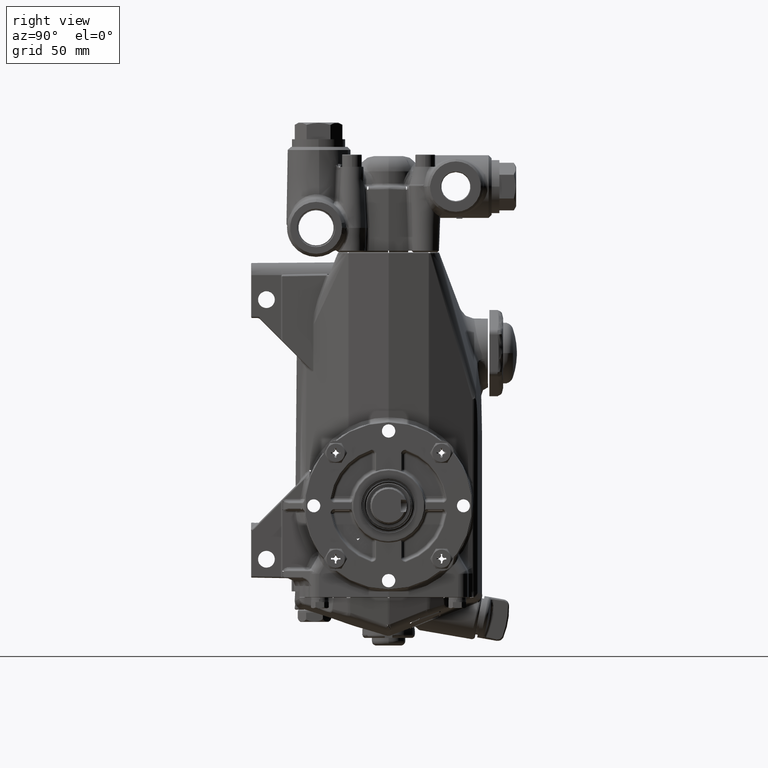
[diagram: clean part render]
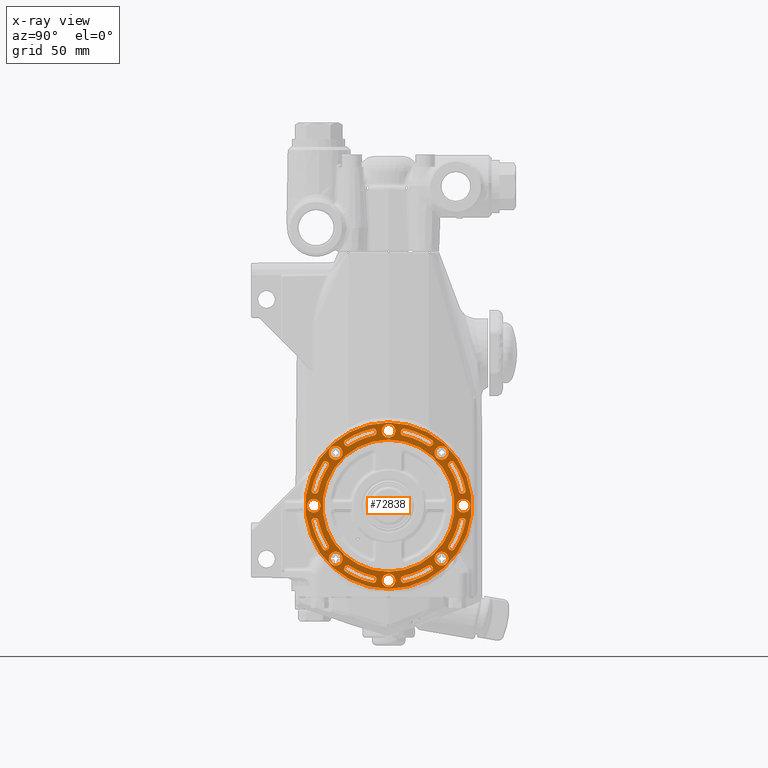
[diagram: x-ray — body ghosted, one internal face saturated and labeled with its STEP entity id]
A machine part, right view, then the same camera in x-ray: the body is ghosted and one INTERNAL B-rep face — a face not visible from any outside direction — is saturated and labeled: STEP entity #72838.
In plain terms, the highlighted planar face has unit normal (-1, -0, 0).
Its self-contained STEP definition (entity closure, byte-faithful):
#61 = ORIENTED_EDGE ( 'NONE', *, *, #52645, .F. ) ;
#69 = CARTESIAN_POINT ( 'NONE',  ( 3.326771653543307394, -4.140493155842437748E-18, 0.000000000000000000 ) ) ;
#125 = CARTESIAN_POINT ( 'NONE',  ( 3.326771653543306950, 0.3317448368538791770, -1.839049640709417011 ) ) ;
#567 = CARTESIAN_POINT ( 'NONE',  ( 3.326771653543307838, -1.985028765662708583, -0.4097197664839574704 ) ) ;
#726 = B_SPLINE_CURVE_WITH_KNOTS ( 'NONE', 3,
 ( #12966, #87877, #23487, #110966, #33962, #66190, #110282, #131266, #45874, #36044, #132640, #67561, #13667, #36744 ),
 .UNSPECIFIED., .F., .F.,
 ( 4, 2, 2, 2, 2, 2, 4 ),
 ( 9.813077866773594792E-18, 0.0007292933855606688939, 0.001093940078340996077, 0.001458586771121323476, 0.001823233463901650659, 0.002187880156681977842, 0.002917173542242641748 ),
 .UNSPECIFIED. ) ;
#875 = VERTEX_POINT ( 'NONE', #58971 ) ;
#882 = AXIS2_PLACEMENT_3D ( 'NONE', #15028, #57739, #79433 ) ;
#1106 = ORIENTED_EDGE ( 'NONE', *, *, #55991, .T. ) ;
#1256 = CARTESIAN_POINT ( 'NONE',  ( 3.326771653543307394, -1.364103632997677673, -1.364103632997663462 ) ) ;
#1266 = CARTESIAN_POINT ( 'NONE',  ( 3.326771653543306506, -1.818048866706913680, -0.3579313023414769646 ) ) ;
#1442 = CARTESIAN_POINT ( 'NONE',  ( 3.326771653543306950, 1.917852017697342371, 0.3154976627112874854 ) ) ;
#1526 = CARTESIAN_POINT ( 'NONE',  ( 3.326771653543306950, 1.835487607211784500, -0.3348964057340477196 ) ) ;
#1621 = EDGE_CURVE ( 'NONE', #106011, #92554, #48148, .T. ) ;
#1667 = DIRECTION ( 'NONE',  ( -1.000000000000000000, -1.170319151078641325E-16, -0.000000000000000000 ) ) ;
#1945 = CARTESIAN_POINT ( 'NONE',  ( 3.326771653543307394, 1.134389218488499163, 1.674120545018789485 ) ) ;
#1946 = CARTESIAN_POINT ( 'NONE',  ( 3.326771653543306950, 1.547705298598357482, -1.015435294297263091 ) ) ;
#2105 = DIRECTION ( 'NONE',  ( 0.000000000000000000, -1.000000000000000000, 0.000000000000000000 ) ) ;
#2284 = ORIENTED_EDGE ( 'NONE', *, *, #136420, .T. ) ;
#2293 = CARTESIAN_POINT ( 'NONE',  ( 3.326771653543307394, -1.693342926317452202, -1.113911675783467947 ) ) ;
#2300 = DIRECTION ( 'NONE',  ( 1.000000000000000000, 1.170319151078641325E-16, 0.000000000000000000 ) ) ;
#2336 = EDGE_CURVE ( 'NONE', #102457, #60436, #61016, .T. ) ;
#2629 = CARTESIAN_POINT ( 'NONE',  ( 3.326771653543307394, -1.547705298598349488, 1.015435294297275082 ) ) ;
#2819 = CARTESIAN_POINT ( 'NONE',  ( 3.326771653543307394, -1.897410173586150384, -0.3140496218123056127 ) ) ;
#2821 = CARTESIAN_POINT ( 'NONE',  ( 3.326771653543305618, 1.986181126311922451, 0.4041367577442563919 ) ) ;
#3147 = VERTEX_POINT ( 'NONE', #94166 ) ;
#3151 = CARTESIAN_POINT ( 'NONE',  ( 3.326771653543307394, 1.015435294297257762, -1.547705298598361034 ) ) ;
#3329 = CARTESIAN_POINT ( 'NONE',  ( 3.326771653543306950, 1.130844600131785116, 1.678615709766699382 ) ) ;
#3380 = CARTESIAN_POINT ( 'NONE',  ( 3.326771653543306950, -0.3164094149519967591, 1.923407570537656985 ) ) ;
#3634 = CARTESIAN_POINT ( 'NONE',  ( 3.326771653543307394, 1.051380274777301560, 1.534988954571805841 ) ) ;
#3775 = CARTESIAN_POINT ( 'NONE',  ( 3.326771653543307394, -0.3317448368538662984, 1.839049640709419675 ) ) ;
#4094 = CARTESIAN_POINT ( 'NONE',  ( 3.326771653543308283, -1.973725329037091747, -0.3502085124717650433 ) ) ;
#4299 = CARTESIAN_POINT ( 'NONE',  ( 3.326771653543308283, -1.917852013223199981, 0.3154976624703508259 ) ) ;
#4306 = CARTESIAN_POINT ( 'NONE',  ( 3.326771653543306506, 1.113464709854570689, 1.556218034958084750 ) ) ;
#4368 = CARTESIAN_POINT ( 'NONE',  ( 3.326771653543307838, -1.887750780254511263, 0.3130738793595960190 ) ) ;
#4471 = CARTESIAN_POINT ( 'NONE',  ( 3.326771653543307838, -1.046625065105506458, -1.535571113545197930 ) ) ;
#4519 = EDGE_CURVE ( 'NONE', #74585, #102221, #131064, .T. ) ;
#4562 = CARTESIAN_POINT ( 'NONE',  ( 3.326771653543307394, -1.534693253332874541, -1.061078214353762261 ) ) ;
#4573 = DIRECTION ( 'NONE',  ( -1.000000000000000000, -1.170319151078641325E-16, -0.000000000000000000 ) ) ;
#4918 = ORIENTED_EDGE ( 'NONE', *, *, #33380, .F. ) ;
#5018 = VERTEX_POINT ( 'NONE', #100405 ) ;
#5065 = CARTESIAN_POINT ( 'NONE',  ( 3.326771653543307838, 1.136312237999743679, -1.583781834805676025 ) ) ;
#5369 = CARTESIAN_POINT ( 'NONE',  ( 3.326771653543307394, 0.1771653543307015188, -1.929133858267716661 ) ) ;
#5481 = CARTESIAN_POINT ( 'NONE',  ( 3.326771653543307394, -1.648798385408513312, -1.147289342132246093 ) ) ;
#5509 = CARTESIAN_POINT ( 'NONE',  ( 3.326771653543307394, 2.018874118642948434E-14, 1.929133858267716661 ) ) ;
#5701 = CARTESIAN_POINT ( 'NONE',  ( 3.326771653543307838, -1.985903270657580766, 0.3815727013604163220 ) ) ;
#5754 = DIRECTION ( 'NONE',  ( 0.000000000000000000, -1.000000000000000000, 0.000000000000000000 ) ) ;
#6005 = EDGE_CURVE ( 'NONE', #110070, #42440, #68807, .T. ) ;
#6024 = FACE_BOUND ( 'NONE', #58475, .T. ) ;
#6400 = AXIS2_PLACEMENT_3D ( 'NONE', #91462, #20043, #102013 ) ;
#6493 = DIRECTION ( 'NONE',  ( 0.000000000000000000, -1.000000000000000000, 0.000000000000000000 ) ) ;
#6514 = CARTESIAN_POINT ( 'NONE',  ( 3.326771653543306950, 1.626345334129618347, 1.149569337445966566 ) ) ;
#6541 = CARTESIAN_POINT ( 'NONE',  ( 3.326771653543307394, -1.089147382681927567, 1.540801748950571870 ) ) ;
#6887 = CARTESIAN_POINT ( 'NONE',  ( 3.326771653543307838, -0.3546204453270193624, -1.977132592936553301 ) ) ;
#6996 = AXIS2_PLACEMENT_3D ( 'NONE', #132846, #88755, #108379 ) ;
#7009 = CARTESIAN_POINT ( 'NONE',  ( 3.326771653543306506, -0.3418805836483915228, -1.828907153726682555 ) ) ;
#7239 = CARTESIAN_POINT ( 'NONE',  ( 3.326771653543307838, -1.065855456238252730, 1.534986252906852755 ) ) ;
#7268 = AXIS2_PLACEMENT_3D ( 'NONE', #18006, #103397, #134891 ) ;
#7391 = DIRECTION ( 'NONE',  ( 1.170319151078641325E-16, -1.000000000000000000, 0.000000000000000000 ) ) ;
#7485 = CARTESIAN_POINT ( 'NONE',  ( 3.326771653543307394, -1.186938278666969326, -1.364103632997663462 ) ) ;
#7670 = DIRECTION ( 'NONE',  ( -1.000000000000000000, -1.170319151078641325E-16, -0.000000000000000000 ) ) ;
#7681 = VERTEX_POINT ( 'NONE', #65421 ) ;
#7715 = VERTEX_POINT ( 'NONE', #75892 ) ;
#7916 = CARTESIAN_POINT ( 'NONE',  ( 3.326771653543307394, -1.119604983222555639, -1.563738217647665962 ) ) ;
#8168 = EDGE_LOOP ( 'NONE', ( #65965, #44153, #111774, #50822, #55674, #53079, #55872, #86423 ) ) ;
#8233 = B_SPLINE_CURVE_WITH_KNOTS ( 'NONE', 3,
 ( #62696, #10159, #10847, #31141, #53536, #138243, #105392, #72515, #8784, #32529, #127756, #52845, #9484, #40290, #85757, #75250 ),
 .UNSPECIFIED., .F., .F.,
 ( 4, 2, 2, 2, 2, 2, 2, 4 ),
 ( 5.774310535657397728E-17, 0.0004282295209120470813, 0.0008564590418240364831, 0.001712918083648038055, 0.002141147604560049086, 0.002569377125472060118, 0.002997606646384071150, 0.003425836167296082181 ),
 .UNSPECIFIED. ) ;
#8252 = CARTESIAN_POINT ( 'NONE',  ( 3.326771653543307394, -0.3151911016699120438, -1.912159567167696972 ) ) ;
#8294 = B_SPLINE_CURVE_WITH_KNOTS ( 'NONE', 3,
 ( #100254, #4368, #28609, #114042, #89742, #131749, #132451, #35159, #135730, #18162, #36555, #61547, #18854, #56895 ),
 .UNSPECIFIED., .F., .F.,
 ( 4, 2, 2, 2, 2, 2, 4 ),
 ( 0.000000000000000000, 0.0007292933855696621340, 0.001093940078354493309, 0.001458586771139324268, 0.001823233463924155227, 0.002187880156708986619, 0.002917173542278652873 ),
 .UNSPECIFIED. ) ;
#8368 = CARTESIAN_POINT ( 'NONE',  ( 3.326771653543307394, -6.737035601123908589E-15, -1.929133858267716661 ) ) ;
#8532 = CARTESIAN_POINT ( 'NONE',  ( 3.326771653543306950, 1.897410173586147719, -0.3140496218123188799 ) ) ;
#8549 = EDGE_CURVE ( 'NONE', #119896, #43299, #23167, .T. ) ;
#8578 = CARTESIAN_POINT ( 'NONE',  ( 3.326771653543306506, -1.061078214353752047, 1.534693253332878315 ) ) ;
#8617 = CARTESIAN_POINT ( 'NONE',  ( 3.326771653543306950, 1.659478797209860357, -1.142841096764716902 ) ) ;
#8784 = CARTESIAN_POINT ( 'NONE',  ( 3.326771653543307394, -1.648841495571706783, 1.146658578304874387 ) ) ;
#8984 = AXIS2_PLACEMENT_3D ( 'NONE', #113977, #59426, #71275 ) ;
#9207 = CARTESIAN_POINT ( 'NONE',  ( 3.326771653543307394, 0.3349809850328026584, -1.835398448913263980 ) ) ;
#9261 = VERTEX_POINT ( 'NONE', #68715 ) ;
#9270 = CARTESIAN_POINT ( 'NONE',  ( 3.326771653543307838, -1.080105331588332884, 1.537637416920769384 ) ) ;
#9272 = CARTESIAN_POINT ( 'NONE',  ( 3.326771653543307394, -1.089049080133203784, -1.540760033799246864 ) ) ;
#9284 = VERTEX_POINT ( 'NONE', #56863 ) ;
#9309 = CIRCLE ( 'NONE', #36101, 0.3156478372018997614 ) ;
#9336 = VERTEX_POINT ( 'NONE', #113501 ) ;
#9340 = EDGE_CURVE ( 'NONE', #12891, #38876, #93972, .T. ) ;
#9432 = B_SPLINE_CURVE_WITH_KNOTS ( 'NONE', 3,
 ( #33078, #116410, #118477, #22592, #65306, #97489, #23297, #85620, #66004, #63932, #94760, #10016, #41539, #84245 ),
 .UNSPECIFIED., .F., .F.,
 ( 4, 2, 2, 2, 2, 2, 4 ),
 ( 6.938893903907228378E-18, 0.0007292933855695739884, 0.001093940078354368193, 0.001458586771139162288, 0.001823233463923956601, 0.002187880156708750697, 0.002917173542278350164 ),
 .UNSPECIFIED. ) ;
#9438 = CIRCLE ( 'NONE', #16147, 2.026871847837471652 ) ;
#9463 = EDGE_CURVE ( 'NONE', #9336, #117745, #71606, .T. ) ;
#9484 = CARTESIAN_POINT ( 'NONE',  ( 3.326771653543307838, -1.678615709766703157, 1.130844600131779787 ) ) ;
#9653 = CARTESIAN_POINT ( 'NONE',  ( 3.326771653543306950, 1.828839220724975068, 0.3419629769233880623 ) ) ;
#9660 = CARTESIAN_POINT ( 'NONE',  ( 3.326771653543307838, -1.878031598948731284, -0.3139003376674425749 ) ) ;
#9871 = CIRCLE ( 'NONE', #108202, 1.702755905511810885 ) ;
#10016 = CARTESIAN_POINT ( 'NONE',  ( 3.326771653543307394, 0.3578451286079146754, 1.818098854831988520 ) ) ;
#10023 = ORIENTED_EDGE ( 'NONE', *, *, #93679, .F. ) ;
#10067 = CARTESIAN_POINT ( 'NONE',  ( 3.326771653543306950, -1.133035630274443095, -1.579216703777745368 ) ) ;
#10153 = AXIS2_PLACEMENT_3D ( 'NONE', #28922, #71653, #136039 ) ;
#10159 = CARTESIAN_POINT ( 'NONE',  ( 3.326771653543307394, -1.579216703777740261, 1.133035630274448868 ) ) ;
#10292 = CARTESIAN_POINT ( 'NONE',  ( 3.326771653543306950, 1.186938278666960001, -1.364103632997673010 ) ) ;
#10318 = CARTESIAN_POINT ( 'NONE',  ( 3.326771653543306950, 1.929133858267716661, 0.000000000000000000 ) ) ;
#10345 = VERTEX_POINT ( 'NONE', #106004 ) ;
#10559 = CARTESIAN_POINT ( 'NONE',  ( 3.326771653543305174, 1.542379538532782535, 1.023552706720136429 ) ) ;
#10678 = CARTESIAN_POINT ( 'NONE',  ( 3.326771653543306950, 1.678615709766710928, -1.130844600131767130 ) ) ;
#10738 = CARTESIAN_POINT ( 'NONE',  ( 3.326771653543306950, 1.929133858267716661, 0.000000000000000000 ) ) ;
#10847 = CARTESIAN_POINT ( 'NONE',  ( 3.326771653543307838, -1.583789779056547831, 1.136319293168893685 ) ) ;
#10856 = CARTESIAN_POINT ( 'NONE',  ( 3.326771653543307394, 0.3154976627112819343, -1.917852017697343481 ) ) ;
#11009 = B_SPLINE_CURVE_WITH_KNOTS ( 'NONE', 3,
 ( #50028, #80851, #16473, #101153, #59872, #27626, #123563, #36759, #133346, #79469, #15062, #37445, #71034, #92022, #26910, #122846 ),
 .UNSPECIFIED., .F., .F.,
 ( 4, 2, 2, 2, 2, 2, 2, 4 ),
 ( 0.000000000000000000, 0.0004282295208267904640, 0.0008564590416535809280, 0.001712918083307161856, 0.002141147604133951561, 0.002569377124960741266, 0.002997606645787530971, 0.003425836166614320676 ),
 .UNSPECIFIED. ) ;
#11202 = CARTESIAN_POINT ( 'NONE',  ( 3.326771653543306950, 1.963434657661292659, 0.3368509684322983921 ) ) ;
#11237 = AXIS2_PLACEMENT_3D ( 'NONE', #57377, #67178, #88179 ) ;
#11286 = CARTESIAN_POINT ( 'NONE',  ( 3.326771653543306950, 1.851023648872705429, -0.3235240401489674622 ) ) ;
#11441 = CARTESIAN_POINT ( 'NONE',  ( 3.326771653543307394, -1.130844600131773792, -1.678615709766707376 ) ) ;
#11528 = CIRCLE ( 'NONE', #33811, 0.3156478372018994838 ) ;
#11707 = CARTESIAN_POINT ( 'NONE',  ( 3.326771653543306950, -1.887750772473743233, -0.3130738785735956986 ) ) ;
#12118 = VERTEX_POINT ( 'NONE', #87945 ) ;
#12132 = DIRECTION ( 'NONE',  ( 0.000000000000000000, -1.000000000000000000, 0.000000000000000000 ) ) ;
#12263 = DIRECTION ( 'NONE',  ( 0.000000000000000000, -1.000000000000000000, 0.000000000000000000 ) ) ;
#12420 = AXIS2_PLACEMENT_3D ( 'NONE', #112837, #114202, #5754 ) ;
#12590 = CARTESIAN_POINT ( 'NONE',  ( 3.326771653543306506, 1.986588436603673458, 0.3873326661609609034 ) ) ;
#12825 = CARTESIAN_POINT ( 'NONE',  ( 3.326771653543307838, -1.150168356821261284, -1.626547564876712260 ) ) ;
#12890 = DIRECTION ( 'NONE',  ( 0.000000000000000000, -1.000000000000000000, 0.000000000000000000 ) ) ;
#12891 = VERTEX_POINT ( 'NONE', #21724 ) ;
#12966 = CARTESIAN_POINT ( 'NONE',  ( 3.326771653543307394, -1.547705298598349488, 1.015435294297275082 ) ) ;
#13093 = CARTESIAN_POINT ( 'NONE',  ( 3.326771653543306950, 1.142841096764734443, 1.659478797209848810 ) ) ;
#13309 = ORIENTED_EDGE ( 'NONE', *, *, #2336, .T. ) ;
#13605 = CARTESIAN_POINT ( 'NONE',  ( 3.326771653543306950, 1.023552706720152639, -1.542379538532772987 ) ) ;
#13667 = CARTESIAN_POINT ( 'NONE',  ( 3.326771653543307394, -1.556218034958088525, 1.113464709854566248 ) ) ;
#13725 = AXIS2_PLACEMENT_3D ( 'NONE', #133507, #59348, #102027 ) ;
#13977 = CARTESIAN_POINT ( 'NONE',  ( 3.326771653543306506, 1.954565120958792868, 0.3293818718167436099 ) ) ;
#14044 = CARTESIAN_POINT ( 'NONE',  ( 3.326771653543306506, -0.3138785754864341082, -1.878128815881576985 ) ) ;
#14257 = CIRCLE ( 'NONE', #105988, 0.3156478372018982625 ) ;
#14317 = CARTESIAN_POINT ( 'NONE',  ( 3.326771653543306950, 0.3706280464029003685, -1.983379597112580939 ) ) ;
#14379 = EDGE_CURVE ( 'NONE', #137078, #50136, #75186, .T. ) ;
#14491 = CARTESIAN_POINT ( 'NONE',  ( 3.326771653543306506, 1.136319293168896793, 1.583789779056542724 ) ) ;
#14559 = EDGE_CURVE ( 'NONE', #85112, #7681, #36766, .T. ) ;
#14590 = CARTESIAN_POINT ( 'NONE',  ( 3.326771653543307394, -1.923407570537654765, -0.3164094149520021992 ) ) ;
#14803 = CARTESIAN_POINT ( 'NONE',  ( 3.326771653543306950, 1.079987192627924530, 1.537603563617377711 ) ) ;
#14857 = CARTESIAN_POINT ( 'NONE',  ( 3.326771653543306950, 1.912159567167698082, -0.3151911016699042167 ) ) ;
#15024 = ORIENTED_EDGE ( 'NONE', *, *, #86787, .T. ) ;
#15028 = CARTESIAN_POINT ( 'NONE',  ( 3.326771653543306950, 1.364103632997668125, -1.364103632997673010 ) ) ;
#15050 = CARTESIAN_POINT ( 'NONE',  ( 3.326771653543306950, -1.537637416920765387, -1.080105331588341322 ) ) ;
#15062 = CARTESIAN_POINT ( 'NONE',  ( 3.326771653543307394, -1.147499041730373870, 1.609572786235474728 ) ) ;
#15164 = CARTESIAN_POINT ( 'NONE',  ( 3.326771653543306950, 2.106299212598424564, 2.169649841009082636E-17 ) ) ;
#15375 = AXIS2_PLACEMENT_3D ( 'NONE', #125152, #93617, #63515 ) ;
#15686 = CARTESIAN_POINT ( 'NONE',  ( 3.326771653543307838, 1.051486571506935253, -1.534978729614515869 ) ) ;
#15754 = EDGE_LOOP ( 'NONE', ( #39170, #22200, #123842, #37121, #119289, #32916, #123228, #95405 ) ) ;
#15802 = ORIENTED_EDGE ( 'NONE', *, *, #106723, .F. ) ;
#15852 = EDGE_CURVE ( 'NONE', #125909, #47977, #69096, .T. ) ;
#15968 = CARTESIAN_POINT ( 'NONE',  ( 3.326771653543307394, -1.690209982545691325, -1.118674304894729188 ) ) ;
#15982 = CARTESIAN_POINT ( 'NONE',  ( 3.326771653543307394, -6.745398684220138180E-15, -1.929133858267716661 ) ) ;
#16108 = CARTESIAN_POINT ( 'NONE',  ( 3.326771653543306950, -1.985028765662703476, 0.4097197664839852815 ) ) ;
#16147 = AXIS2_PLACEMENT_3D ( 'NONE', #64763, #136899, #85072 ) ;
#16217 = VERTEX_POINT ( 'NONE', #84398 ) ;
#16264 = CARTESIAN_POINT ( 'NONE',  ( 3.326771653543306950, 1.147499041730383862, -1.609572786235464514 ) ) ;
#16300 = EDGE_CURVE ( 'NONE', #54662, #3147, #9438, .T. ) ;
#16464 = CARTESIAN_POINT ( 'NONE',  ( 3.326771653543306950, -1.542786856006947316, -1.093507460440740431 ) ) ;
#16473 = CARTESIAN_POINT ( 'NONE',  ( 3.326771653543306950, -1.123013757591794226, 1.686623255655706144 ) ) ;
#16594 = AXIS2_PLACEMENT_3D ( 'NONE', #136006, #102453, #49241 ) ;
#16949 = AXIS2_PLACEMENT_3D ( 'NONE', #44235, #86943, #129632 ) ;
#16961 = CARTESIAN_POINT ( 'NONE',  ( 3.326771653543307394, 1.977132592936557076, -0.3546204453270166979 ) ) ;
#17033 = DIRECTION ( 'NONE',  ( 0.000000000000000000, -1.000000000000000000, 0.000000000000000000 ) ) ;
#17395 = DIRECTION ( 'NONE',  ( -1.000000000000000000, -1.170319151078641325E-16, -0.000000000000000000 ) ) ;
#17406 = CARTESIAN_POINT ( 'NONE',  ( 3.326771653543307394, -0.4097197664839893894, -1.985028765662703254 ) ) ;
#17512 = EDGE_CURVE ( 'NONE', #47977, #23895, #74071, .T. ) ;
#17611 = VERTEX_POINT ( 'NONE', #22106 ) ;
#17684 = DIRECTION ( 'NONE',  ( 0.000000000000000000, -1.000000000000000000, 0.000000000000000000 ) ) ;
#17742 = ORIENTED_EDGE ( 'NONE', *, *, #16300, .F. ) ;
#17745 = CARTESIAN_POINT ( 'NONE',  ( 3.326771653543307838, -1.113464714800607602, 1.556218041015712705 ) ) ;
#17746 = CARTESIAN_POINT ( 'NONE',  ( 3.326771653543307394, 0.000000000000000000, 0.000000000000000000 ) ) ;
#17902 = FACE_BOUND ( 'NONE', #40539, .T. ) ;
#17932 = CIRCLE ( 'NONE', #53638, 1.851080908068039932 ) ;
#18006 = CARTESIAN_POINT ( 'NONE',  ( 3.326771653543307394, -1.299649890669890379E-17, 0.000000000000000000 ) ) ;
#18055 = CARTESIAN_POINT ( 'NONE',  ( 3.326771653543307838, -1.574974762015466379, -1.129227231294556821 ) ) ;
#18162 = CARTESIAN_POINT ( 'NONE',  ( 3.326771653543307838, -1.828907153726675894, 0.3418805836484033467 ) ) ;
#18171 = EDGE_CURVE ( 'NONE', #53231, #66693, #9309, .T. ) ;
#18335 = CARTESIAN_POINT ( 'NONE',  ( 3.326771653543307394, 1.113911675783465727, -1.693342926317453756 ) ) ;
#18599 = CARTESIAN_POINT ( 'NONE',  ( 3.326771653543306950, 2.380510850331669204, -2.165354330708661568 ) ) ;
#18786 = CARTESIAN_POINT ( 'NONE',  ( 3.326771653543307394, -0.4041367533570428550, -1.986181127217466091 ) ) ;
#18854 = CARTESIAN_POINT ( 'NONE',  ( 3.326771653543307838, -1.814388090683566546, 0.3668659710362429660 ) ) ;
#18902 = CARTESIAN_POINT ( 'NONE',  ( 3.326771653543307394, -0.3763717294635058885, -1.812414094370999207 ) ) ;
#18939 = VERTEX_POINT ( 'NONE', #87807 ) ;
#19008 = ORIENTED_EDGE ( 'NONE', *, *, #110441, .T. ) ;
#19150 = CARTESIAN_POINT ( 'NONE',  ( 3.326771653543306950, 1.648841495571714555, -1.146658578304861731 ) ) ;
#19786 = CARTESIAN_POINT ( 'NONE',  ( 3.326771653543307394, -1.106091952456082605, 1.549983290847358752 ) ) ;
#19854 = CARTESIAN_POINT ( 'NONE',  ( 3.326771653543307394, -0.3140496218123001726, 1.897410173586151494 ) ) ;
#20043 = DIRECTION ( 'NONE',  ( -1.000000000000000000, -1.170319151078641325E-16, -0.000000000000000000 ) ) ;
#20089 = VERTEX_POINT ( 'NONE', #75086 ) ;
#20755 = VERTEX_POINT ( 'NONE', #72542 ) ;
#21183 = CARTESIAN_POINT ( 'NONE',  ( 3.326771653543307394, 1.574974762015459273, -1.129227231294566591 ) ) ;
#21208 = EDGE_CURVE ( 'NONE', #20089, #53496, #9432, .T. ) ;
#21231 = VERTEX_POINT ( 'NONE', #47759 ) ;
#21262 = CARTESIAN_POINT ( 'NONE',  ( 3.326771653543307394, 0.3151911016698987211, -1.912159567167698970 ) ) ;
#21724 = CARTESIAN_POINT ( 'NONE',  ( 3.326771653543307394, 1.547705298598371693, 1.015435294297241331 ) ) ;
#21752 = CARTESIAN_POINT ( 'NONE',  ( 3.326771653543307394, 1.534693253332882978, 1.061078214353756710 ) ) ;
#21859 = CIRCLE ( 'NONE', #80052, 0.1771653543307082912 ) ;
#21944 = CARTESIAN_POINT ( 'NONE',  ( 3.326771653543306950, -1.129227231294572364, -1.574974762015455498 ) ) ;
#22106 = CARTESIAN_POINT ( 'NONE',  ( 3.326771653543307394, -1.129227231294550604, 1.574974762015471486 ) ) ;
#22200 = ORIENTED_EDGE ( 'NONE', *, *, #47299, .F. ) ;
#22205 = CARTESIAN_POINT ( 'NONE',  ( 3.326771653543306506, 1.542785697979726756, -1.093500823128415567 ) ) ;
#22221 = DIRECTION ( 'NONE',  ( -1.000000000000000000, -1.170319151078641325E-16, -0.000000000000000000 ) ) ;
#22232 = EDGE_CURVE ( 'NONE', #102221, #99125, #34391, .T. ) ;
#22238 = ORIENTED_EDGE ( 'NONE', *, *, #65144, .F. ) ;
#22249 = EDGE_LOOP ( 'NONE', ( #121051, #32622, #136550, #33986, #65910, #26047, #17742, #126928 ) ) ;
#22454 = DIRECTION ( 'NONE',  ( 1.000000000000000000, 1.170319151078641325E-16, 0.000000000000000000 ) ) ;
#22592 = CARTESIAN_POINT ( 'NONE',  ( 3.326771653543306950, 0.3176885072522682707, 1.864141588363715574 ) ) ;
#22630 = CARTESIAN_POINT ( 'NONE',  ( 3.326771653543307394, -6.756272768202563790E-15, -1.929133858267716661 ) ) ;
#22937 = VERTEX_POINT ( 'NONE', #56629 ) ;
#23167 = B_SPLINE_CURVE_WITH_KNOTS ( 'NONE', 3,
 ( #122743, #68853, #98454, #4471, #47171, #89849, #79365, #111561, #93976, #9272, #84185, #71610, #70936, #7916 ),
 .UNSPECIFIED., .F., .F.,
 ( 4, 2, 2, 2, 2, 2, 4 ),
 ( 0.000000000000000000, 0.0007292933855606720380, 0.001093940078341000630, 0.001458586771121329548, 0.001823233463901658465, 0.002187880156681986949, 0.002917173542242644784 ),
 .UNSPECIFIED. ) ;
#23279 = CARTESIAN_POINT ( 'NONE',  ( 3.326771653543307394, -0.3151911016698853985, 1.912159567167701635 ) ) ;
#23297 = CARTESIAN_POINT ( 'NONE',  ( 3.326771653543306506, 0.3260331409972546668, 1.846839360462063651 ) ) ;
#23384 = CARTESIAN_POINT ( 'NONE',  ( 3.326771653543307394, -0.3139003376674370238, 1.878031598948732173 ) ) ;
#23487 = CARTESIAN_POINT ( 'NONE',  ( 3.326771653543306950, -1.538650333261565750, 1.032459031092388679 ) ) ;
#23810 = AXIS2_PLACEMENT_3D ( 'NONE', #10738, #1667, #12132 ) ;
#23895 = VERTEX_POINT ( 'NONE', #78872 ) ;
#23906 = EDGE_LOOP ( 'NONE', ( #120954, #24619, #15802, #49161, #112746, #130308, #4918, #115904 ) ) ;
#24111 = CARTESIAN_POINT ( 'NONE',  ( 3.326771653543306950, 1.032555312065979392, -1.538624746172414737 ) ) ;
#24480 = B_SPLINE_CURVE_WITH_KNOTS ( 'NONE', 3,
 ( #17406, #18786, #61481, #126539, #38367, #60104, #6887, #30603, #40435, #102787, #29233, #83162, #73329, #91553, #113969, #8252 ),
 .UNSPECIFIED., .F., .F.,
 ( 4, 2, 2, 2, 2, 2, 2, 4 ),
 ( 2.550987402193939262E-16, 0.0004282295208270113160, 0.0008564590416537675192, 0.001712918083307279817, 0.002141147604134037864, 0.002569377124960796344, 0.002997606645787553956, 0.003425836166614312436 ),
 .UNSPECIFIED. ) ;
#24619 = ORIENTED_EDGE ( 'NONE', *, *, #137548, .F. ) ;
#24725 = ORIENTED_EDGE ( 'NONE', *, *, #59299, .F. ) ;
#24982 = CARTESIAN_POINT ( 'NONE',  ( 3.326771653543306950, 1.146658578304879050, 1.648841495571702565 ) ) ;
#25345 = VERTEX_POINT ( 'NONE', #80363 ) ;
#25446 = EDGE_CURVE ( 'NONE', #57721, #100895, #75053, .T. ) ;
#25542 = CARTESIAN_POINT ( 'NONE',  ( 3.326771653543306950, -1.549983290847355200, -1.106091952456089267 ) ) ;
#25730 = CARTESIAN_POINT ( 'NONE',  ( 3.326771653543306950, 0.3267354781478206127, 1.949544185773041116 ) ) ;
#25962 = CARTESIAN_POINT ( 'NONE',  ( 3.326771653543307838, -1.954210980301184453, 0.3298665673228765582 ) ) ;
#25971 = CARTESIAN_POINT ( 'NONE',  ( 3.326771653543307394, 1.065825448121323404, 1.534983495647306517 ) ) ;
#26023 = CARTESIAN_POINT ( 'NONE',  ( 3.326771653543306950, 1.986713384740028454, -0.3985320980221198073 ) ) ;
#26047 = ORIENTED_EDGE ( 'NONE', *, *, #92244, .F. ) ;
#26110 = CARTESIAN_POINT ( 'NONE',  ( 3.326771653543307394, -0.3176923816918953980, 1.864136076226262873 ) ) ;
#26401 = CARTESIAN_POINT ( 'NONE',  ( 3.326771653543306950, 0.3193806971624982283, 1.934206383820413988 ) ) ;
#26438 = CIRCLE ( 'NONE', #15375, 0.3156478372018985401 ) ;
#26573 = DIRECTION ( 'NONE',  ( -1.000000000000000000, -1.170319151078641325E-16, -0.000000000000000000 ) ) ;
#26633 = CARTESIAN_POINT ( 'NONE',  ( 3.326771653543308283, -1.982098268607403346, 0.3650989065984419080 ) ) ;
#26704 = CARTESIAN_POINT ( 'NONE',  ( 3.326771653543307394, 1.143391214050867299, -1.659719039369950799 ) ) ;
#26910 = CARTESIAN_POINT ( 'NONE',  ( 3.326771653543307838, -1.133035627281103963, 1.579216700443689669 ) ) ;
#27128 = CARTESIAN_POINT ( 'NONE',  ( 3.326771653543309171, -1.986588436603676344, -0.3873326661609305943 ) ) ;
#27134 = CIRCLE ( 'NONE', #6996, 2.026871847837471652 ) ;
#27290 = CARTESIAN_POINT ( 'NONE',  ( 3.326771653543307394, -1.812414094371003648, -0.3763717294634859045 ) ) ;
#27371 = ORIENTED_EDGE ( 'NONE', *, *, #41828, .T. ) ;
#27415 = CARTESIAN_POINT ( 'NONE',  ( 3.326771653543306506, 1.917852013223202201, -0.3154976624703372812 ) ) ;
#27422 = CARTESIAN_POINT ( 'NONE',  ( 3.326771653543306950, 1.129227231294561040, -1.574974762015463492 ) ) ;
#27566 = CARTESIAN_POINT ( 'NONE',  ( 3.326771653543305618, 0.3193964925806857535, -1.934255469358367119 ) ) ;
#27626 = CARTESIAN_POINT ( 'NONE',  ( 3.326771653543307394, -1.143391214050853977, 1.659719039369964788 ) ) ;
#27801 = CARTESIAN_POINT ( 'NONE',  ( 3.326771653543307394, 0.4097197664839656306, -1.985028765662707473 ) ) ;
#27803 = CARTESIAN_POINT ( 'NONE',  ( 3.326771653543306950, 0.3214776271867212376, 1.939533081672587089 ) ) ;
#27987 = EDGE_CURVE ( 'NONE', #47066, #59138, #45986, .T. ) ;
#27991 = EDGE_LOOP ( 'NONE', ( #31166, #78115, #36571, #134199, #132271, #45330, #108402, #55437 ) ) ;
#28177 = CARTESIAN_POINT ( 'NONE',  ( 3.326771653543306950, 1.364103632997687221, 1.364103632997653914 ) ) ;
#28186 = CARTESIAN_POINT ( 'NONE',  ( 3.326771653543306506, 1.648798385408522416, 1.147289342132233214 ) ) ;
#28204 = CIRCLE ( 'NONE', #23810, 0.1771653543307080136 ) ;
#28548 = DIRECTION ( 'NONE',  ( -1.000000000000000000, -1.170319151078641325E-16, -0.000000000000000000 ) ) ;
#28609 = CARTESIAN_POINT ( 'NONE',  ( 3.326771653543306950, -1.878128815881573432, 0.3138785754864398259 ) ) ;
#28835 = CARTESIAN_POINT ( 'NONE',  ( 3.326771653543307394, -1.929133858267716661, 1.347107753498895519E-14 ) ) ;
#28922 = CARTESIAN_POINT ( 'NONE',  ( 3.326771653543307394, -1.299649890669890379E-17, 0.000000000000000000 ) ) ;
#29233 = CARTESIAN_POINT ( 'NONE',  ( 3.326771653543307394, -0.3267354781478055137, -1.949544185773041116 ) ) ;
#29485 = CARTESIAN_POINT ( 'NONE',  ( 3.326771653543307838, 1.148584949399450217, -1.615086722680904252 ) ) ;
#29621 = CARTESIAN_POINT ( 'NONE',  ( 3.326771653543306506, 1.614994406462198606, -1.149178096139130245 ) ) ;
#29743 = FACE_BOUND ( 'NONE', #79783, .T. ) ;
#30067 = CARTESIAN_POINT ( 'NONE',  ( 3.326771653543306950, 1.119604983222544536, -1.563738217647673734 ) ) ;
#30080 = VERTEX_POINT ( 'NONE', #137526 ) ;
#30231 = CIRCLE ( 'NONE', #95120, 0.3156478372018985401 ) ;
#30563 = CARTESIAN_POINT ( 'NONE',  ( 3.326771653543307838, -1.579216700443684562, -1.133035627281110402 ) ) ;
#30603 = CARTESIAN_POINT ( 'NONE',  ( 3.326771653543308283, -0.3412689382459737075, -1.966834090208890107 ) ) ;
#31141 = CARTESIAN_POINT ( 'NONE',  ( 3.326771653543306506, -1.593572584721466123, 1.141877733139477602 ) ) ;
#31166 = ORIENTED_EDGE ( 'NONE', *, *, #49389, .F. ) ;
#31169 = EDGE_LOOP ( 'NONE', ( #105607, #61, #111861, #54998, #75936, #66720, #83663, #50385 ) ) ;
#32043 = CARTESIAN_POINT ( 'NONE',  ( 3.326771653543307394, -1.299649890669890379E-17, 0.000000000000000000 ) ) ;
#32111 = EDGE_CURVE ( 'NONE', #12118, #47066, #8294, .T. ) ;
#32216 = CIRCLE ( 'NONE', #126178, 2.026871847837471652 ) ;
#32240 = CIRCLE ( 'NONE', #16594, 1.851080908068039932 ) ;
#32529 = CARTESIAN_POINT ( 'NONE',  ( 3.326771653543306950, -1.659478797209853251, 1.142841096764729558 ) ) ;
#32622 = ORIENTED_EDGE ( 'NONE', *, *, #67044, .F. ) ;
#32867 = EDGE_CURVE ( 'NONE', #20755, #130501, #46464, .T. ) ;
#32916 = ORIENTED_EDGE ( 'NONE', *, *, #15852, .F. ) ;
#32948 = DIRECTION ( 'NONE',  ( 0.000000000000000000, -1.000000000000000000, 0.000000000000000000 ) ) ;
#33078 = CARTESIAN_POINT ( 'NONE',  ( 3.326771653543307394, 0.3140496218123399741, 1.897410173586144833 ) ) ;
#33192 = VERTEX_POINT ( 'NONE', #2293 ) ;
#33316 = ORIENTED_EDGE ( 'NONE', *, *, #36658, .T. ) ;
#33380 = EDGE_CURVE ( 'NONE', #42440, #57520, #75872, .T. ) ;
#33394 = CARTESIAN_POINT ( 'NONE',  ( 3.326771653543307394, -1.814388089093708745, -0.3668659786921836252 ) ) ;
#33395 = CARTESIAN_POINT ( 'NONE',  ( 3.326771653543307394, 1.150168356821272386, 1.626547564876704044 ) ) ;
#33481 = ORIENTED_EDGE ( 'NONE', *, *, #32867, .F. ) ;
#33811 = AXIS2_PLACEMENT_3D ( 'NONE', #8368, #26573, #39181 ) ;
#33858 = CARTESIAN_POINT ( 'NONE',  ( 3.326771653543307394, -0.3130738785735903140, 1.887750772473744121 ) ) ;
#33917 = DIRECTION ( 'NONE',  ( 0.000000000000000000, -1.000000000000000000, 0.000000000000000000 ) ) ;
#33962 = CARTESIAN_POINT ( 'NONE',  ( 3.326771653543307838, -1.534988954571808950, 1.051380274777297563 ) ) ;
#33986 = ORIENTED_EDGE ( 'NONE', *, *, #56500, .F. ) ;
#34091 = CARTESIAN_POINT ( 'NONE',  ( 3.326771653543306950, 1.556218034958096963, -1.113464709854554258 ) ) ;
#34198 = AXIS2_PLACEMENT_3D ( 'NONE', #1256, #34789, #120871 ) ;
#34258 = B_SPLINE_CURVE_WITH_KNOTS ( 'NONE', 3,
 ( #18335, #80641, #133146, #91810, #37256, #26704, #135906, #125417, #134525, #29485, #16264, #38619, #39309, #5065, #48437, #27422 ),
 .UNSPECIFIED., .F., .F.,
 ( 4, 2, 2, 2, 2, 2, 2, 4 ),
 ( 2.037543309078296514E-16, 0.0004282295208269724473, 0.0008564590416537410647, 0.001712918083307283720, 0.002141147604134044802, 0.002569377124960805885, 0.002997606645787566967, 0.003425836166614328049 ),
 .UNSPECIFIED. ) ;
#34280 = CARTESIAN_POINT ( 'NONE',  ( 3.326771653543307838, 1.986711293253072608, 0.3985425149428069025 ) ) ;
#34391 = CIRCLE ( 'NONE', #123858, 2.026871847837471652 ) ;
#34655 = CARTESIAN_POINT ( 'NONE',  ( 3.326771653543307394, -1.364103632997677673, -1.364103632997663462 ) ) ;
#34789 = DIRECTION ( 'NONE',  ( -1.000000000000000000, -1.170319151078641325E-16, -0.000000000000000000 ) ) ;
#34978 = CARTESIAN_POINT ( 'NONE',  ( 3.326771653543306950, 1.912159567167700081, 0.3151911016699043833 ) ) ;
#35050 = CARTESIAN_POINT ( 'NONE',  ( 3.326771653543306950, -1.563738217647661521, 1.119604983222561856 ) ) ;
#35155 = CARTESIAN_POINT ( 'NONE',  ( 3.326771653543306950, 1.962868088266329192, -0.3371315403619603024 ) ) ;
#35159 = CARTESIAN_POINT ( 'NONE',  ( 3.326771653543306950, -1.839072809329316938, 0.3317255675878086341 ) ) ;
#35221 = CIRCLE ( 'NONE', #41938, 0.1771653543307085410 ) ;
#35241 = CARTESIAN_POINT ( 'NONE',  ( 3.326771653543307394, -0.3260494430792701404, 1.846814016198897734 ) ) ;
#35445 = CARTESIAN_POINT ( 'NONE',  ( 3.326771653543307394, -1.693342926317437103, 1.113911675783491706 ) ) ;
#35496 = CARTESIAN_POINT ( 'NONE',  ( 3.326771653542086593, -1.015435294297243329, 1.547705298598395895 ) ) ;
#35728 = CARTESIAN_POINT ( 'NONE',  ( 3.326771653543307394, 1.818098854831991851, -0.3578451286078945803 ) ) ;
#35784 = CARTESIAN_POINT ( 'NONE',  ( 3.326771653543306950, 1.106007821517873690, 1.549929936280652898 ) ) ;
#35935 = CARTESIAN_POINT ( 'NONE',  ( 3.326771653543306950, -0.3668659786921784072, 1.814388089093709411 ) ) ;
#36044 = CARTESIAN_POINT ( 'NONE',  ( 3.326771653543307394, -1.540760033799243089, 1.089049080133210223 ) ) ;
#36101 = AXIS2_PLACEMENT_3D ( 'NONE', #113569, #135262, #125451 ) ;
#36155 = AXIS2_PLACEMENT_3D ( 'NONE', #18599, #60603, #7391 ) ;
#36170 = CARTESIAN_POINT ( 'NONE',  ( 3.326771653543306950, 1.140387557875949254, 1.664534767694751505 ) ) ;
#36438 = AXIS2_PLACEMENT_3D ( 'NONE', #60762, #48850, #80358 ) ;
#36555 = CARTESIAN_POINT ( 'NONE',  ( 3.326771653543307838, -1.825893780902468233, 0.3457329745014958711 ) ) ;
#36571 = ORIENTED_EDGE ( 'NONE', *, *, #58759, .F. ) ;
#36658 = EDGE_CURVE ( 'NONE', #25345, #10345, #98582, .T. ) ;
#36728 = DIRECTION ( 'NONE',  ( -1.000000000000000000, -1.170319151078641325E-16, -0.000000000000000000 ) ) ;
#36744 = CARTESIAN_POINT ( 'NONE',  ( 3.326771653543306950, -1.563738217647661521, 1.119604983222561856 ) ) ;
#36759 = CARTESIAN_POINT ( 'NONE',  ( 3.326771653543308283, -1.149448142213510327, 1.632075303097652030 ) ) ;
#36766 = B_SPLINE_CURVE_WITH_KNOTS ( 'NONE', 3,
 ( #79189, #121894, #46990, #88312, #5701, #26633, #47690, #90362, #133074, #25962, #100186, #99503, #100873, #120491, #4299, #57507 ),
 .UNSPECIFIED., .F., .F.,
 ( 4, 2, 2, 2, 2, 2, 2, 4 ),
 ( 0.000000000000000000, 0.0004282295208267815193, 0.0008564590416535630387, 0.001712918083307125644, 0.002141147604133915132, 0.002569377124960704837, 0.002997606645787494976, 0.003425836166614284681 ),
 .UNSPECIFIED. ) ;
#36864 = AXIS2_PLACEMENT_3D ( 'NONE', #67354, #2300, #121249 ) ;
#36925 = CARTESIAN_POINT ( 'NONE',  ( 3.326771653543307394, -0.3154976627112684451, 1.917852017697346367 ) ) ;
#36939 = CARTESIAN_POINT ( 'NONE',  ( 3.326771653543307394, 0.3815727013604240936, 1.985903270657579434 ) ) ;
#37121 = ORIENTED_EDGE ( 'NONE', *, *, #90169, .F. ) ;
#37256 = CARTESIAN_POINT ( 'NONE',  ( 3.326771653543307838, 1.134433024814910818, -1.674058314110127732 ) ) ;
#37342 = EDGE_CURVE ( 'NONE', #16217, #57721, #48780, .T. ) ;
#37348 = DIRECTION ( 'NONE',  ( 0.000000000000000000, 0.000000000000000000, 1.000000000000000000 ) ) ;
#37445 = CARTESIAN_POINT ( 'NONE',  ( 3.326771653543307394, -1.144137984202840297, 1.598776004569818276 ) ) ;
#37585 = EDGE_CURVE ( 'NONE', #110647, #9284, #11528, .T. ) ;
#37864 = CIRCLE ( 'NONE', #49074, 0.3156478372018997614 ) ;
#37915 = CARTESIAN_POINT ( 'NONE',  ( 3.326771653543306950, 1.934206383820417985, -0.3193806971624770230 ) ) ;
#38104 = VERTEX_POINT ( 'NONE', #131998 ) ;
#38182 = FACE_BOUND ( 'NONE', #54562, .T. ) ;
#38329 = AXIS2_PLACEMENT_3D ( 'NONE', #28177, #40052, #17033 ) ;
#38342 = CARTESIAN_POINT ( 'NONE',  ( 3.326771653543307394, -1.939602276203076014, -0.3215093099017519163 ) ) ;
#38367 = CARTESIAN_POINT ( 'NONE',  ( 3.326771653543307838, -0.3815727013604024442, -1.985903270657580544 ) ) ;
#38619 = CARTESIAN_POINT ( 'NONE',  ( 3.326771653543306950, 1.144137984202849845, -1.598776004569807840 ) ) ;
#38876 = VERTEX_POINT ( 'NONE', #63594 ) ;
#39025 = CARTESIAN_POINT ( 'NONE',  ( 3.326771653543307838, -1.674058314110135726, -1.134433024814902824 ) ) ;
#39033 = CARTESIAN_POINT ( 'NONE',  ( 3.326771653543307394, -1.912159567167700303, -0.3151911016698909496 ) ) ;
#39170 = ORIENTED_EDGE ( 'NONE', *, *, #93091, .F. ) ;
#39181 = DIRECTION ( 'NONE',  ( 0.000000000000000000, -1.000000000000000000, 0.000000000000000000 ) ) ;
#39293 = ORIENTED_EDGE ( 'NONE', *, *, #71057, .F. ) ;
#39309 = CARTESIAN_POINT ( 'NONE',  ( 3.326771653543306950, 1.141854193470048129, -1.593526706957403061 ) ) ;
#39431 = B_SPLINE_CURVE_WITH_KNOTS ( 'NONE', 3,
 ( #89245, #57084, #25542, #16464, #78068, #15050, #100446, #110969, #4562, #111653, #47260, #101851, #133336, #131948 ),
 .UNSPECIFIED., .F., .F.,
 ( 4, 2, 2, 2, 2, 2, 4 ),
 ( 3.469446951953613804E-18, 0.0007292933855696457626, 0.001093940078354476613, 0.001458586771139307571, 0.001823233463924138530, 0.002187880156708969272, 0.002917173542278625117 ),
 .UNSPECIFIED. ) ;
#39594 = ORIENTED_EDGE ( 'NONE', *, *, #48680, .F. ) ;
#39663 = CARTESIAN_POINT ( 'NONE',  ( 3.326771653543307394, 1.985028765662702144, 0.4097197664839909437 ) ) ;
#40052 = DIRECTION ( 'NONE',  ( -1.000000000000000000, -1.170319151078641325E-16, -0.000000000000000000 ) ) ;
#40167 = ORIENTED_EDGE ( 'NONE', *, *, #132360, .F. ) ;
#40237 = FACE_BOUND ( 'NONE', #31169, .T. ) ;
#40290 = CARTESIAN_POINT ( 'NONE',  ( 3.326771653543306950, -1.686629142626322242, 1.123004912811970790 ) ) ;
#40373 = ORIENTED_EDGE ( 'NONE', *, *, #76820, .T. ) ;
#40435 = CARTESIAN_POINT ( 'NONE',  ( 3.326771653543307838, -0.3371315403619651319, -1.962868088266324751 ) ) ;
#40539 = EDGE_LOOP ( 'NONE', ( #39594, #64620, #60850, #66493, #109613, #66485, #66155, #24725 ) ) ;
#40762 = CARTESIAN_POINT ( 'NONE',  ( 3.326771653543306950, 1.686623255655709919, 1.123013757591787565 ) ) ;
#40930 = CIRCLE ( 'NONE', #110305, 0.3156478372018995948 ) ;
#41395 = CIRCLE ( 'NONE', #16949, 0.3156478372018994838 ) ;
#41407 = CARTESIAN_POINT ( 'NONE',  ( 3.326771653543307394, 0.3419629769233833994, -1.828839220724975734 ) ) ;
#41432 = EDGE_CURVE ( 'NONE', #17611, #137078, #40930, .T. ) ;
#41450 = CARTESIAN_POINT ( 'NONE',  ( 3.326771653543307838, 1.690209982545701317, 1.118674304894716531 ) ) ;
#41475 = EDGE_CURVE ( 'NONE', #57520, #17611, #11009, .T. ) ;
#41503 = AXIS2_PLACEMENT_3D ( 'NONE', #41602, #127680, #95499 ) ;
#41539 = CARTESIAN_POINT ( 'NONE',  ( 3.326771653543307394, 0.3668659710362512372, 1.814388090683564769 ) ) ;
#41602 = CARTESIAN_POINT ( 'NONE',  ( 3.326771653543307394, -2.465042306318467107E-16, 0.000000000000000000 ) ) ;
#41770 = CARTESIAN_POINT ( 'NONE',  ( 3.326771653543307394, -1.364103632997677673, -1.364103632997663462 ) ) ;
#41828 = EDGE_CURVE ( 'NONE', #108734, #65969, #45427, .T. ) ;
#41938 = AXIS2_PLACEMENT_3D ( 'NONE', #129827, #87830, #33917 ) ;
#42074 = CARTESIAN_POINT ( 'NONE',  ( 3.326771653543307394, 1.540801748950578309, 1.089147382681927345 ) ) ;
#42177 = EDGE_CURVE ( 'NONE', #80914, #126051, #85790, .T. ) ;
#42263 = CARTESIAN_POINT ( 'NONE',  ( 3.326771653543307394, -1.123004912811964573, -1.686629142626326683 ) ) ;
#42440 = VERTEX_POINT ( 'NONE', #111471 ) ;
#42817 = VERTEX_POINT ( 'NONE', #89583 ) ;
#42923 = CARTESIAN_POINT ( 'NONE',  ( 3.326771653543307394, -0.1771653543307150358, -1.929133858267716661 ) ) ;
#43224 = CARTESIAN_POINT ( 'NONE',  ( 3.326771653543306950, 1.818048866706912126, 0.3579313023414890105 ) ) ;
#43231 = CARTESIAN_POINT ( 'NONE',  ( 3.326771653543307394, -1.850916174112274382, -0.3235836391086294728 ) ) ;
#43299 = VERTEX_POINT ( 'NONE', #114404 ) ;
#43417 = DIRECTION ( 'NONE',  ( 0.000000000000000000, -1.000000000000000000, 4.440892098500625373E-15 ) ) ;
#43486 = B_SPLINE_CURVE_WITH_KNOTS ( 'NONE', 3,
 ( #21183, #62523, #106587, #105213, #104529, #29621, #72347, #52002, #19150, #8617, #61851, #94730, #10678, #80261, #53364, #122958 ),
 .UNSPECIFIED., .F., .F.,
 ( 4, 2, 2, 2, 2, 2, 2, 4 ),
 ( 0.000000000000000000, 0.0004282295209120112484, 0.0008564590418240224969, 0.001712918083648041958, 0.002141147604560052556, 0.002569377125472062720, 0.002997606646384073318, 0.003425836167296083916 ),
 .UNSPECIFIED. ) ;
#43829 = VERTEX_POINT ( 'NONE', #57082 ) ;
#44153 = ORIENTED_EDGE ( 'NONE', *, *, #113862, .F. ) ;
#44235 = CARTESIAN_POINT ( 'NONE',  ( 3.326771653543307394, 2.019675638575777141E-14, 1.929133858267716661 ) ) ;
#44333 = CARTESIAN_POINT ( 'NONE',  ( 3.326771653543306506, -1.141877733139470719, -1.593572584721469232 ) ) ;
#44605 = CARTESIAN_POINT ( 'NONE',  ( 3.326771653543306950, 1.123004912811975675, 1.686629142626318467 ) ) ;
#44606 = CARTESIAN_POINT ( 'NONE',  ( 3.326771653543306950, 1.538650333261573300, -1.032459031092376689 ) ) ;
#44678 = CARTESIAN_POINT ( 'NONE',  ( 3.326771653543307394, 0.4097197664839933862, 1.985028765662701700 ) ) ;
#44752 = ORIENTED_EDGE ( 'NONE', *, *, #52636, .T. ) ;
#45038 = CARTESIAN_POINT ( 'NONE',  ( 3.326771653543307394, -1.144164509061920354, -1.598847335554200555 ) ) ;
#45121 = CARTESIAN_POINT ( 'NONE',  ( 3.326771653543306950, 1.119604983222544536, -1.563738217647673734 ) ) ;
#45157 = DIRECTION ( 'NONE',  ( -1.000000000000000000, -1.170319151078641325E-16, -0.000000000000000000 ) ) ;
#45328 = CARTESIAN_POINT ( 'NONE',  ( 3.326771653543306950, 0.3763717294635186006, 1.812414094370996764 ) ) ;
#45330 = ORIENTED_EDGE ( 'NONE', *, *, #4519, .F. ) ;
#45332 = CIRCLE ( 'NONE', #36438, 0.1771653543307082912 ) ;
#45427 = CIRCLE ( 'NONE', #63318, 0.1771653543307082912 ) ;
#45521 = ORIENTED_EDGE ( 'NONE', *, *, #91764, .T. ) ;
#45812 = DIRECTION ( 'NONE',  ( 0.000000000000000000, -1.000000000000000000, -8.881784197001252323E-16 ) ) ;
#45849 = AXIS2_PLACEMENT_3D ( 'NONE', #32043, #22221, #53731 ) ;
#45874 = CARTESIAN_POINT ( 'NONE',  ( 3.326771653543307394, -1.537603563617380376, 1.079987192627920312 ) ) ;
#45986 = CIRCLE ( 'NONE', #50459, 1.851080908068039932 ) ;
#46304 = ORIENTED_EDGE ( 'NONE', *, *, #121782, .T. ) ;
#46305 = EDGE_CURVE ( 'NONE', #7715, #43829, #9871, .T. ) ;
#46319 = CARTESIAN_POINT ( 'NONE',  ( 3.326771653543305618, 1.046625065105517782, 1.535571113545190602 ) ) ;
#46464 = B_SPLINE_CURVE_WITH_KNOTS ( 'NONE', 3,
 ( #1946, #76095, #44606, #65632, #120883, #110410, #77513, #87308, #67693, #75421, #22205, #129999, #34091, #99881 ),
 .UNSPECIFIED., .F., .F.,
 ( 4, 2, 2, 2, 2, 2, 4 ),
 ( 0.000000000000000000, 0.0007292933855606520887, 0.001093940078340985235, 0.001458586771121318489, 0.001823233463901651743, 0.002187880156681984781, 0.002917173542242642182 ),
 .UNSPECIFIED. ) ;
#46514 = CARTESIAN_POINT ( 'NONE',  ( 3.326771653543306506, 0.3164094149520100263, -1.923407570537654543 ) ) ;
#46770 = CARTESIAN_POINT ( 'NONE',  ( 3.326771653543306506, -1.659719039369958793, -1.143391214050860416 ) ) ;
#46778 = CARTESIAN_POINT ( 'NONE',  ( 3.326771653543307394, -1.983379597112579606, -0.3706280464028869903 ) ) ;
#46990 = CARTESIAN_POINT ( 'NONE',  ( 3.326771653543307838, -1.986713384740026012, 0.3985320980221338516 ) ) ;
#47059 = CARTESIAN_POINT ( 'NONE',  ( 3.326771653543307838, 1.986181127217467868, -0.4041367533570344173 ) ) ;
#47066 = VERTEX_POINT ( 'NONE', #93080 ) ;
#47114 = VERTEX_POINT ( 'NONE', #115477 ) ;
#47158 = DIRECTION ( 'NONE',  ( -1.000000000000000000, -1.170319151078641325E-16, -0.000000000000000000 ) ) ;
#47171 = CARTESIAN_POINT ( 'NONE',  ( 3.326771653543306506, -1.051380274777290680, -1.534988954571812947 ) ) ;
#47260 = CARTESIAN_POINT ( 'NONE',  ( 3.326771653543307394, -1.535572004952280301, -1.046631743452679730 ) ) ;
#47299 = EDGE_CURVE ( 'NONE', #33192, #109471, #80312, .T. ) ;
#47416 = CARTESIAN_POINT ( 'NONE',  ( 3.326771653543306950, 1.563738217647669959, -1.119604983222550088 ) ) ;
#47437 = CIRCLE ( 'NONE', #65322, 0.3156478372018994838 ) ;
#47476 = CARTESIAN_POINT ( 'NONE',  ( 3.326771653543307394, -1.986181126311925782, -0.4041367577442435133 ) ) ;
#47618 = CARTESIAN_POINT ( 'NONE',  ( 3.326771653543306950, -1.129227231294572364, -1.574974762015455498 ) ) ;
#47690 = CARTESIAN_POINT ( 'NONE',  ( 3.326771653543306950, -1.977132592936554190, 0.3546204453270304091 ) ) ;
#47752 = CARTESIAN_POINT ( 'NONE',  ( 3.326771653543306950, 1.923396964346048454, -0.3164087862762802184 ) ) ;
#47759 = CARTESIAN_POINT ( 'NONE',  ( 3.326771653543306950, 1.541268987328376028, -1.364103632997673010 ) ) ;
#47842 = CARTESIAN_POINT ( 'NONE',  ( 3.326771653543307394, -1.299649890669890379E-17, 0.000000000000000000 ) ) ;
#47977 = VERTEX_POINT ( 'NONE', #2819 ) ;
#47999 = DIRECTION ( 'NONE',  ( -1.000000000000000000, -1.170319151078641325E-16, -0.000000000000000000 ) ) ;
#48128 = CARTESIAN_POINT ( 'NONE',  ( 3.326771653543307394, 0.3164087862763015901, 1.923396964346044902 ) ) ;
#48133 = VERTEX_POINT ( 'NONE', #125214 ) ;
#48148 = B_SPLINE_CURVE_WITH_KNOTS ( 'NONE', 3,
 ( #75902, #121903, #54227, #46319, #3634, #88996, #25971, #100192, #14803, #131693, #68015, #35784, #4306, #78508 ),
 .UNSPECIFIED., .F., .F.,
 ( 4, 2, 2, 2, 2, 2, 4 ),
 ( 0.000000000000000000, 0.0007292933855606553413, 0.001093940078340985885, 0.001458586771121316537, 0.001823233463901646973, 0.002187880156681977408, 0.002917173542242649121 ),
 .UNSPECIFIED. ) ;
#48155 = CARTESIAN_POINT ( 'NONE',  ( 3.326771653543306506, -1.632075303097646701, -1.149448142213516322 ) ) ;
#48359 = EDGE_CURVE ( 'NONE', #67296, #119896, #74918, .T. ) ;
#48437 = CARTESIAN_POINT ( 'NONE',  ( 3.326771653543306950, 1.133035627281114843, -1.579216700443681454 ) ) ;
#48579 = CARTESIAN_POINT ( 'NONE',  ( 3.326771653543306950, 0.3985425149427841429, -1.986711293253074606 ) ) ;
#48680 = EDGE_CURVE ( 'NONE', #79428, #30080, #30231, .T. ) ;
#48688 = FACE_BOUND ( 'NONE', #8168, .T. ) ;
#48780 = B_SPLINE_CURVE_WITH_KNOTS ( 'NONE', 3,
 ( #51901, #63117, #105120, #105819, #41407, #9207, #125, #137311, #106493, #84125, #74288, #96677, #74987, #73601 ),
 .UNSPECIFIED., .F., .F.,
 ( 4, 2, 2, 2, 2, 2, 4 ),
 ( 0.000000000000000000, 0.0007292933855606693275, 0.001093940078341001931, 0.001458586771121334535, 0.001823233463901666705, 0.002187880156681999092, 0.002917173542242643049 ),
 .UNSPECIFIED. ) ;
#48819 = CARTESIAN_POINT ( 'NONE',  ( 3.326771653543306506, 0.3872811768810689448, 1.986585654473272733 ) ) ;
#48850 = DIRECTION ( 'NONE',  ( -1.000000000000000000, -1.170319151078641325E-16, -0.000000000000000000 ) ) ;
#49074 = AXIS2_PLACEMENT_3D ( 'NONE', #114382, #92682, #135396 ) ;
#49102 = CARTESIAN_POINT ( 'NONE',  ( 3.326771653543306950, 1.897410173586147719, -0.3140496218123188799 ) ) ;
#49161 = ORIENTED_EDGE ( 'NONE', *, *, #14379, .F. ) ;
#49176 = CARTESIAN_POINT ( 'NONE',  ( 3.326771653543307394, -0.3763717294634805199, 1.812414094371004536 ) ) ;
#49241 = DIRECTION ( 'NONE',  ( 0.000000000000000000, -1.000000000000000000, 0.000000000000000000 ) ) ;
#49278 = CARTESIAN_POINT ( 'NONE',  ( 3.326771653543306950, 0.3293818718167353388, -1.954565120958790425 ) ) ;
#49389 = EDGE_CURVE ( 'NONE', #53496, #106011, #70552, .T. ) ;
#49401 = FACE_BOUND ( 'NONE', #128320, .T. ) ;
#49909 = CARTESIAN_POINT ( 'NONE',  ( 3.326771653543306506, 1.674058314110144607, 1.134433024814888835 ) ) ;
#49933 = CARTESIAN_POINT ( 'NONE',  ( 3.326771653543308283, -1.046631743452669294, 1.535572004952285852 ) ) ;
#50028 = CARTESIAN_POINT ( 'NONE',  ( 3.326771653543306950, -1.113911675783461508, 1.693342926317457309 ) ) ;
#50132 = AXIS2_PLACEMENT_3D ( 'NONE', #10318, #95050, #138399 ) ;
#50136 = VERTEX_POINT ( 'NONE', #35496 ) ;
#50333 = CARTESIAN_POINT ( 'NONE',  ( 3.326771653543307394, 1.113911675783496369, 1.693342926317433772 ) ) ;
#50357 = DIRECTION ( 'NONE',  ( 0.000000000000000000, -1.000000000000000000, 0.000000000000000000 ) ) ;
#50380 = CARTESIAN_POINT ( 'NONE',  ( 3.326771653543306950, -0.3457329745014831035, -1.825893780902473340 ) ) ;
#50385 = ORIENTED_EDGE ( 'NONE', *, *, #69169, .F. ) ;
#50459 = AXIS2_PLACEMENT_3D ( 'NONE', #54333, #55715, #120100 ) ;
#50524 = CARTESIAN_POINT ( 'NONE',  ( 3.326771653543306950, -1.015435294297268420, -1.547705298598353929 ) ) ;
#50573 = ORIENTED_EDGE ( 'NONE', *, *, #65899, .F. ) ;
#50822 = ORIENTED_EDGE ( 'NONE', *, *, #62019, .F. ) ;
#50829 = CIRCLE ( 'NONE', #129055, 0.1771653543307082912 ) ;
#51271 = CARTESIAN_POINT ( 'NONE',  ( 3.326771653543307838, -1.051486571506913270, 1.534978729614523862 ) ) ;
#51643 = CIRCLE ( 'NONE', #71758, 2.026871847837471652 ) ;
#51719 = CIRCLE ( 'NONE', #38329, 0.1771653543307081524 ) ;
#51779 = B_SPLINE_CURVE_WITH_KNOTS ( 'NONE', 3,
 ( #111458, #47059, #26023, #68745, #57568, #100250, #16961, #123344, #35155, #67365, #80632, #59661, #37915, #47752, #27415, #14857 ),
 .UNSPECIFIED., .F., .F.,
 ( 4, 2, 2, 2, 2, 2, 2, 4 ),
 ( 3.469446951953614189E-18, 0.0004282295208267815735, 0.0008564590416535596776, 0.001712918083307120439, 0.002141147604133907326, 0.002569377124960693995, 0.002997606645787481098, 0.003425836166614267767 ),
 .UNSPECIFIED. ) ;
#51901 = CARTESIAN_POINT ( 'NONE',  ( 3.326771653543307394, 0.3763717294634932875, -1.812414094371002093 ) ) ;
#52002 = CARTESIAN_POINT ( 'NONE',  ( 3.326771653543307838, 1.643269378359828448, -1.147999750363726923 ) ) ;
#52269 = EDGE_CURVE ( 'NONE', #73724, #5018, #50829, .T. ) ;
#52342 = CARTESIAN_POINT ( 'NONE',  ( 3.326771653543307394, 1.859555857687821279, 0.3194078784735097098 ) ) ;
#52471 = B_SPLINE_CURVE_WITH_KNOTS ( 'NONE', 3,
 ( #45121, #87818, #77331, #132585, #110223, #68886, #57028, #99704, #111587, #15686, #120007, #24111, #13605, #3151 ),
 .UNSPECIFIED., .F., .F.,
 ( 4, 2, 2, 2, 2, 2, 4 ),
 ( 0.000000000000000000, 0.0007292933855695815778, 0.001093940078354372313, 0.001458586771139163156, 0.001823233463923953999, 0.002187880156708744625, 0.002917173542278336720 ),
 .UNSPECIFIED. ) ;
#52636 = EDGE_CURVE ( 'NONE', #56531, #9261, #35221, .T. ) ;
#52645 = EDGE_CURVE ( 'NONE', #100895, #131521, #107616, .T. ) ;
#52756 = CARTESIAN_POINT ( 'NONE',  ( 3.326771653543306950, -1.147999750363733362, -1.643269378359824895 ) ) ;
#52845 = CARTESIAN_POINT ( 'NONE',  ( 3.326771653543306950, -1.674120545018792150, 1.134389218488493833 ) ) ;
#53079 = ORIENTED_EDGE ( 'NONE', *, *, #8549, .F. ) ;
#53121 = B_SPLINE_CURVE_WITH_KNOTS ( 'NONE', 3,
 ( #97787, #64921, #43224, #74733, #9653, #107603, #116721, #64236, #85923, #52342, #86610, #63559, #97108, #127928 ),
 .UNSPECIFIED., .F., .F.,
 ( 4, 2, 2, 2, 2, 2, 4 ),
 ( 2.525795506525165703E-17, 0.0007292933855606832053, 0.001093940078341009954, 0.001458586771121336704, 0.001823233463901663236, 0.002187880156681989985, 0.002917173542242645218 ),
 .UNSPECIFIED. ) ;
#53231 = VERTEX_POINT ( 'NONE', #117613 ) ;
#53299 = EDGE_CURVE ( 'NONE', #42817, #68269, #131466, .T. ) ;
#53364 = CARTESIAN_POINT ( 'NONE',  ( 3.326771653543307394, 1.690209985007603777, -1.118674301152188244 ) ) ;
#53414 = AXIS2_PLACEMENT_3D ( 'NONE', #61907, #71019, #136085 ) ;
#53496 = VERTEX_POINT ( 'NONE', #45328 ) ;
#53536 = CARTESIAN_POINT ( 'NONE',  ( 3.326771653543307394, -1.598847335554197890, 1.144164509061927015 ) ) ;
#53638 = AXIS2_PLACEMENT_3D ( 'NONE', #47842, #47158, #87776 ) ;
#53731 = DIRECTION ( 'NONE',  ( 0.000000000000000000, -1.000000000000000000, 0.000000000000000000 ) ) ;
#53983 = CARTESIAN_POINT ( 'NONE',  ( 3.326771653543307394, 1.846839360462067203, -0.3260331409972342942 ) ) ;
#54227 = CARTESIAN_POINT ( 'NONE',  ( 3.326771653543307394, 1.032459031092392898, 1.538650333261563530 ) ) ;
#54247 = CIRCLE ( 'NONE', #125724, 0.1771653543307082912 ) ;
#54333 = CARTESIAN_POINT ( 'NONE',  ( 3.326771653543307394, -1.299649890669890379E-17, 0.000000000000000000 ) ) ;
#54484 = CARTESIAN_POINT ( 'NONE',  ( 3.326771653543307394, 6.065921084684207584E-32, -2.145669291332502837 ) ) ;
#54562 = EDGE_LOOP ( 'NONE', ( #10023, #68713, #39293, #22238, #50573, #33481, #76369, #40167 ) ) ;
#54662 = VERTEX_POINT ( 'NONE', #39663 ) ;
#54998 = ORIENTED_EDGE ( 'NONE', *, *, #37342, .F. ) ;
#55116 = CARTESIAN_POINT ( 'NONE',  ( 3.326771653543306950, 1.129227231294583245, 1.574974762015447505 ) ) ;
#55299 = CARTESIAN_POINT ( 'NONE',  ( 3.326771653543307394, 1.983379597112582049, 0.3706280464029147459 ) ) ;
#55437 = ORIENTED_EDGE ( 'NONE', *, *, #1621, .F. ) ;
#55460 = EDGE_CURVE ( 'NONE', #107430, #85112, #97210, .T. ) ;
#55533 = EDGE_CURVE ( 'NONE', #74374, #67252, #124173, .T. ) ;
#55674 = ORIENTED_EDGE ( 'NONE', *, *, #136064, .F. ) ;
#55715 = DIRECTION ( 'NONE',  ( -1.000000000000000000, -1.170319151078641325E-16, -0.000000000000000000 ) ) ;
#55872 = ORIENTED_EDGE ( 'NONE', *, *, #48359, .F. ) ;
#55991 = EDGE_CURVE ( 'NONE', #60436, #102457, #135348, .T. ) ;
#56321 = CARTESIAN_POINT ( 'NONE',  ( 3.326771653543307394, -4.140493155842436978E-18, 0.000000000000000000 ) ) ;
#56439 = CIRCLE ( 'NONE', #7268, 1.851080908068039932 ) ;
#56500 = EDGE_CURVE ( 'NONE', #66693, #12891, #68336, .T. ) ;
#56531 = VERTEX_POINT ( 'NONE', #98023 ) ;
#56629 = CARTESIAN_POINT ( 'NONE',  ( 3.326771653543306950, 1.912159567167698082, -0.3151911016699042167 ) ) ;
#56699 = CARTESIAN_POINT ( 'NONE',  ( 3.326771653543307394, 1.976717059045622671, 0.3550969461954383566 ) ) ;
#56863 = CARTESIAN_POINT ( 'NONE',  ( 3.326771653543307394, -0.3140496218123267069, -1.897410173586147053 ) ) ;
#56895 = CARTESIAN_POINT ( 'NONE',  ( 3.326771653542395679, -1.812414094371010975, 0.3763717294635277599 ) ) ;
#57028 = CARTESIAN_POINT ( 'NONE',  ( 3.326771653543307394, 1.075372390654256494, -1.536452880435650981 ) ) ;
#57082 = CARTESIAN_POINT ( 'NONE',  ( 3.326771653543307394, 0.000000000000000000, 1.702755905511810885 ) ) ;
#57084 = CARTESIAN_POINT ( 'NONE',  ( 3.326771653543306950, -1.556218041015708486, -1.113464714800614708 ) ) ;
#57254 = EDGE_CURVE ( 'NONE', #67252, #74374, #28204, .T. ) ;
#57301 = CARTESIAN_POINT ( 'NONE',  ( 3.326771653543307394, -1.976717059045618452, -0.3550969461954135986 ) ) ;
#57377 = CARTESIAN_POINT ( 'NONE',  ( 3.326771653543306950, 1.364103632997687221, 1.364103632997653914 ) ) ;
#57507 = CARTESIAN_POINT ( 'NONE',  ( 3.326771653543307394, -1.912159567167695862, 0.3151911016699177059 ) ) ;
#57520 = VERTEX_POINT ( 'NONE', #93218 ) ;
#57568 = CARTESIAN_POINT ( 'NONE',  ( 3.326771653543307394, 1.985903270657582764, -0.3815727013604022222 ) ) ;
#57694 = EDGE_CURVE ( 'NONE', #92554, #74585, #115463, .T. ) ;
#57721 = VERTEX_POINT ( 'NONE', #107166 ) ;
#57739 = DIRECTION ( 'NONE',  ( -1.000000000000000000, -1.170319151078641325E-16, -0.000000000000000000 ) ) ;
#57986 = DIRECTION ( 'NONE',  ( -1.000000000000000000, -1.170319151078641325E-16, -0.000000000000000000 ) ) ;
#58106 = CARTESIAN_POINT ( 'NONE',  ( 3.326771653543307394, 0.1771653543307284695, 1.929133858267716661 ) ) ;
#58123 = CARTESIAN_POINT ( 'NONE',  ( 3.326771653543306950, -0.3130738793595904679, -1.887750780254513261 ) ) ;
#58472 = DIRECTION ( 'NONE',  ( 0.000000000000000000, -1.000000000000000000, 0.000000000000000000 ) ) ;
#58475 = EDGE_LOOP ( 'NONE', ( #70380, #123186 ) ) ;
#58676 = CARTESIAN_POINT ( 'NONE',  ( 3.326771653543306506, -1.678577334084470074, -1.130879041287466080 ) ) ;
#58691 = DIRECTION ( 'NONE',  ( -1.000000000000000000, -1.170319151078641325E-16, -0.000000000000000000 ) ) ;
#58759 = EDGE_CURVE ( 'NONE', #59207, #20089, #41395, .T. ) ;
#58971 = CARTESIAN_POINT ( 'NONE',  ( 3.326771653543307394, -1.563738217647676843, -1.119604983222540096 ) ) ;
#59121 = CARTESIAN_POINT ( 'NONE',  ( 3.326771653543306950, 0.3873326661609448607, -1.986588436603673458 ) ) ;
#59138 = VERTEX_POINT ( 'NONE', #2629 ) ;
#59184 = CARTESIAN_POINT ( 'NONE',  ( 3.326771653543307394, 1.015435294297279301, 1.547705298598346824 ) ) ;
#59207 = VERTEX_POINT ( 'NONE', #113166 ) ;
#59236 = FACE_BOUND ( 'NONE', #80268, .T. ) ;
#59299 = EDGE_CURVE ( 'NONE', #30080, #107430, #8233, .T. ) ;
#59348 = DIRECTION ( 'NONE',  ( -1.000000000000000000, -1.170319151078641325E-16, -0.000000000000000000 ) ) ;
#59426 = DIRECTION ( 'NONE',  ( 1.000000000000000000, 1.170319151078641325E-16, 0.000000000000000000 ) ) ;
#59661 = CARTESIAN_POINT ( 'NONE',  ( 3.326771653543306950, 1.939533081672591308, -0.3214776271867000323 ) ) ;
#59872 = CARTESIAN_POINT ( 'NONE',  ( 3.326771653543306950, -1.134433024814895719, 1.674058314110141055 ) ) ;
#60104 = CARTESIAN_POINT ( 'NONE',  ( 3.326771653543308283, -0.3650989065984295290, -1.982098268607401792 ) ) ;
#60217 = CARTESIAN_POINT ( 'NONE',  ( 3.326771653543307838, -0.3235240401489750117, -1.851023648872705429 ) ) ;
#60436 = VERTEX_POINT ( 'NONE', #83219 ) ;
#60478 = CIRCLE ( 'NONE', #8984, 2.145669291332502393 ) ;
#60603 = DIRECTION ( 'NONE',  ( -1.000000000000000000, -1.170319151078641325E-16, 0.000000000000000000 ) ) ;
#60762 = CARTESIAN_POINT ( 'NONE',  ( 3.326771653543307394, -6.756272768202563790E-15, -1.929133858267716661 ) ) ;
#60766 = CIRCLE ( 'NONE', #125598, 0.1771653543307085410 ) ;
#60850 = ORIENTED_EDGE ( 'NONE', *, *, #27987, .F. ) ;
#61016 = CIRCLE ( 'NONE', #34198, 0.1771653543307082912 ) ;
#61296 = FACE_OUTER_BOUND ( 'NONE', #122603, .T. ) ;
#61481 = CARTESIAN_POINT ( 'NONE',  ( 3.326771653543307394, -0.3985320980221188081, -1.986713384740027788 ) ) ;
#61547 = CARTESIAN_POINT ( 'NONE',  ( 3.326771653543307838, -1.818098854831985189, 0.3578451286079165627 ) ) ;
#61598 = CARTESIAN_POINT ( 'NONE',  ( 3.326771653543306506, -0.3578451286079016858, -1.818098854831990296 ) ) ;
#61684 = DIRECTION ( 'NONE',  ( -1.000000000000000000, -1.170319151078641325E-16, -0.000000000000000000 ) ) ;
#61851 = CARTESIAN_POINT ( 'NONE',  ( 3.326771653543306950, 1.664534767694763495, -1.140387557875931490 ) ) ;
#61907 = CARTESIAN_POINT ( 'NONE',  ( 3.326771653543306950, 1.929133858267716661, 0.000000000000000000 ) ) ;
#61971 = PLANE ( 'NONE',  #36155 ) ;
#62019 = EDGE_CURVE ( 'NONE', #71192, #42817, #137595, .T. ) ;
#62405 = CARTESIAN_POINT ( 'NONE',  ( 3.326771653543305618, 1.542786856006957086, 1.093507460440731549 ) ) ;
#62523 = CARTESIAN_POINT ( 'NONE',  ( 3.326771653543307838, 1.579216703777749364, -1.133035630274437544 ) ) ;
#62627 = CARTESIAN_POINT ( 'NONE',  ( 3.326771653543307394, -4.140493155842436978E-18, 0.000000000000000000 ) ) ;
#62696 = CARTESIAN_POINT ( 'NONE',  ( 3.326771653543307394, -1.574974762015452834, 1.129227231294580136 ) ) ;
#62892 = VERTEX_POINT ( 'NONE', #84316 ) ;
#63096 = CARTESIAN_POINT ( 'NONE',  ( 3.326771653543306950, 1.537637416920775379, 1.080105331588333772 ) ) ;
#63117 = CARTESIAN_POINT ( 'NONE',  ( 3.326771653543307394, 0.3668659786921911192, -1.814388089093706746 ) ) ;
#63318 = AXIS2_PLACEMENT_3D ( 'NONE', #22630, #90463, #17684 ) ;
#63494 = CARTESIAN_POINT ( 'NONE',  ( 3.326771653543307394, -1.593526706957407280, -1.141854193470044354 ) ) ;
#63515 = DIRECTION ( 'NONE',  ( 0.000000000000000000, -1.000000000000000000, 0.000000000000000000 ) ) ;
#63559 = CARTESIAN_POINT ( 'NONE',  ( 3.326771653543307838, 1.878031598948729730, 0.3139003376674556756 ) ) ;
#63566 = CARTESIAN_POINT ( 'NONE',  ( 3.326771653543308283, -1.846814016198896402, -0.3260494430792756360 ) ) ;
#63594 = CARTESIAN_POINT ( 'NONE',  ( 3.326771653543307394, 1.812414094371001205, 0.3763717294634975619 ) ) ;
#63787 = CARTESIAN_POINT ( 'NONE',  ( 3.326771653543307394, 1.547705298598371693, 1.015435294297241331 ) ) ;
#63932 = CARTESIAN_POINT ( 'NONE',  ( 3.326771653543306506, 0.3418805836484042904, 1.828907153726680113 ) ) ;
#64176 = CARTESIAN_POINT ( 'NONE',  ( 3.326771653543307394, -1.119604983222533656, 1.563738217647681505 ) ) ;
#64236 = CARTESIAN_POINT ( 'NONE',  ( 3.326771653543307838, 1.846814016198894404, 0.3260494430792881815 ) ) ;
#64461 = CARTESIAN_POINT ( 'NONE',  ( 3.326771653543306950, 1.534986252906857640, 1.065855456238256505 ) ) ;
#64496 = ORIENTED_EDGE ( 'NONE', *, *, #46305, .T. ) ;
#64620 = ORIENTED_EDGE ( 'NONE', *, *, #119409, .F. ) ;
#64656 = CARTESIAN_POINT ( 'NONE',  ( 3.326771653543307394, -1.149178096139136684, -1.614994406462195053 ) ) ;
#64719 = DIRECTION ( 'NONE',  ( -1.000000000000000000, -1.170319151078641325E-16, -0.000000000000000000 ) ) ;
#64763 = CARTESIAN_POINT ( 'NONE',  ( 3.326771653543307394, -4.140493155842436208E-18, 0.000000000000000000 ) ) ;
#64921 = CARTESIAN_POINT ( 'NONE',  ( 3.326771653543306950, 1.814388089093705414, 0.3668659786921963373 ) ) ;
#64928 = CARTESIAN_POINT ( 'NONE',  ( 3.326771653543307838, -1.859555857687822167, -0.3194078784734969423 ) ) ;
#65144 = EDGE_CURVE ( 'NONE', #47114, #92610, #43486, .T. ) ;
#65306 = CARTESIAN_POINT ( 'NONE',  ( 3.326771653543305618, 0.3193678651410724045, 1.859654865153016479 ) ) ;
#65322 = AXIS2_PLACEMENT_3D ( 'NONE', #5509, #17395, #90860 ) ;
#65325 = VERTEX_POINT ( 'NONE', #49102 ) ;
#65421 = CARTESIAN_POINT ( 'NONE',  ( 3.326771653543307394, -1.912159567167695862, 0.3151911016699177059 ) ) ;
#65631 = CARTESIAN_POINT ( 'NONE',  ( 3.326771653543307838, 1.147999750363744464, 1.643269378359816679 ) ) ;
#65632 = CARTESIAN_POINT ( 'NONE',  ( 3.326771653543307394, 1.535571113545201261, -1.046625065105501351 ) ) ;
#65804 = CARTESIAN_POINT ( 'NONE',  ( 3.326771653543307838, 1.939602276203079567, 0.3215093099017678480 ) ) ;
#65899 = EDGE_CURVE ( 'NONE', #130501, #47114, #37864, .T. ) ;
#65910 = ORIENTED_EDGE ( 'NONE', *, *, #18171, .F. ) ;
#65965 = ORIENTED_EDGE ( 'NONE', *, *, #37585, .F. ) ;
#65969 = VERTEX_POINT ( 'NONE', #42923 ) ;
#66004 = CARTESIAN_POINT ( 'NONE',  ( 3.326771653543306950, 0.3348964057340676481, 1.835487607211780947 ) ) ;
#66155 = ORIENTED_EDGE ( 'NONE', *, *, #55460, .F. ) ;
#66190 = CARTESIAN_POINT ( 'NONE',  ( 3.326771653543306506, -1.534690015491078086, 1.060955363320605249 ) ) ;
#66485 = ORIENTED_EDGE ( 'NONE', *, *, #14559, .F. ) ;
#66493 = ORIENTED_EDGE ( 'NONE', *, *, #32111, .F. ) ;
#66693 = VERTEX_POINT ( 'NONE', #80843 ) ;
#66720 = ORIENTED_EDGE ( 'NONE', *, *, #114583, .F. ) ;
#66850 = CARTESIAN_POINT ( 'NONE',  ( 3.326771653543307394, -1.364103632997658577, 1.364103632997682336 ) ) ;
#67039 = VERTEX_POINT ( 'NONE', #567 ) ;
#67044 = EDGE_CURVE ( 'NONE', #38876, #62892, #53121, .T. ) ;
#67178 = DIRECTION ( 'NONE',  ( -1.000000000000000000, -1.170319151078641325E-16, -0.000000000000000000 ) ) ;
#67252 = VERTEX_POINT ( 'NONE', #15164 ) ;
#67296 = VERTEX_POINT ( 'NONE', #125036 ) ;
#67354 = CARTESIAN_POINT ( 'NONE',  ( 3.326771653543307394, -4.140493155842436978E-18, 0.000000000000000000 ) ) ;
#67365 = CARTESIAN_POINT ( 'NONE',  ( 3.326771653543306950, 1.954210980301185785, -0.3298665673228626805 ) ) ;
#67511 = CARTESIAN_POINT ( 'NONE',  ( 3.326771653543306950, 1.186938278666979096, 1.364103632997653914 ) ) ;
#67561 = CARTESIAN_POINT ( 'NONE',  ( 3.326771653543306950, -1.549929936280656229, 1.106007821517869472 ) ) ;
#67693 = CARTESIAN_POINT ( 'NONE',  ( 3.326771653543306950, 1.537603563617388591, -1.079987192627908321 ) ) ;
#67704 = EDGE_LOOP ( 'NONE', ( #19008, #46304 ) ) ;
#67750 = CARTESIAN_POINT ( 'NONE',  ( 3.326771653543307394, -0.3873326661609309829, 1.986588436603677899 ) ) ;
#68015 = CARTESIAN_POINT ( 'NONE',  ( 3.326771653543306950, 1.093500823128431998, 1.542785697979716097 ) ) ;
#68215 = CARTESIAN_POINT ( 'NONE',  ( 3.326771653543306950, 0.4041367577442515069, -1.986181126311924450 ) ) ;
#68269 = VERTEX_POINT ( 'NONE', #88189 ) ;
#68336 = B_SPLINE_CURVE_WITH_KNOTS ( 'NONE', 3,
 ( #126122, #74966, #127464, #62405, #42074, #63096, #93887, #64461, #21752, #83421, #72908, #115595, #10559, #63787 ),
 .UNSPECIFIED., .F., .F.,
 ( 4, 2, 2, 2, 2, 2, 4 ),
 ( 0.000000000000000000, 0.0007292933855695671579, 0.001093940078354360169, 0.001458586771139153398, 0.001823233463923946409, 0.002187880156708739421, 0.002917173542278335852 ),
 .UNSPECIFIED. ) ;
#68378 = AXIS2_PLACEMENT_3D ( 'NONE', #15982, #58691, #123783 ) ;
#68379 = VERTEX_POINT ( 'NONE', #68572 ) ;
#68443 = CARTESIAN_POINT ( 'NONE',  ( 3.326771653543307394, -0.4097197664839516973, 1.985028765662710803 ) ) ;
#68572 = CARTESIAN_POINT ( 'NONE',  ( 3.326771653543307394, 1.015435294297257762, -1.547705298598361034 ) ) ;
#68630 = CARTESIAN_POINT ( 'NONE',  ( 3.326771653543307394, -0.3140496218123267069, -1.897410173586147053 ) ) ;
#68713 = ORIENTED_EDGE ( 'NONE', *, *, #129865, .F. ) ;
#68715 = CARTESIAN_POINT ( 'NONE',  ( 3.326771653543307394, -2.106299212598425008, 1.347107753498895519E-14 ) ) ;
#68745 = CARTESIAN_POINT ( 'NONE',  ( 3.326771653543307394, 1.986585654473276286, -0.3872811768810470179 ) ) ;
#68807 = B_SPLINE_CURVE_WITH_KNOTS ( 'NONE', 3,
 ( #79635, #36925, #3380, #98550, #80314, #78240, #88733, #110456, #100623, #130752, #90801, #69112, #67750, #111823, #131438, #68443 ),
 .UNSPECIFIED., .F., .F.,
 ( 4, 2, 2, 2, 2, 2, 2, 4 ),
 ( 7.152448122690996019E-18, 0.0004282295209120127663, 0.0008564590418240183769, 0.001712918083648047813, 0.002141147604560058194, 0.002569377125472068792, 0.002997606646384079390, 0.003425836167296089987 ),
 .UNSPECIFIED. ) ;
#68853 = CARTESIAN_POINT ( 'NONE',  ( 3.326771653543307394, -1.023552700182376318, -1.542379542822147842 ) ) ;
#68886 = CARTESIAN_POINT ( 'NONE',  ( 3.326771653543307394, 1.080105331588350204, -1.537637416920763833 ) ) ;
#68971 = VERTEX_POINT ( 'NONE', #19854 ) ;
#69096 = B_SPLINE_CURVE_WITH_KNOTS ( 'NONE', 3,
 ( #83879, #33394, #1266, #86618, #129302, #85928, #106925, #63566, #43231, #64928, #76093, #9660, #11707, #118795 ),
 .UNSPECIFIED., .F., .F.,
 ( 4, 2, 2, 2, 2, 2, 4 ),
 ( 0.000000000000000000, 0.0007292933855606552329, 0.001093940078340985018, 0.001458586771121315019, 0.001823233463901644804, 0.002187880156681974372, 0.002917173542242634376 ),
 .UNSPECIFIED. ) ;
#69112 = CARTESIAN_POINT ( 'NONE',  ( 3.326771653543307838, -0.3816476810083816451, 1.985916298804630165 ) ) ;
#69113 = VERTEX_POINT ( 'NONE', #78577 ) ;
#69128 = CARTESIAN_POINT ( 'NONE',  ( 3.326771653543306950, 0.3985320980221419007, 1.986713384740024235 ) ) ;
#69169 = EDGE_CURVE ( 'NONE', #69113, #80914, #34258, .T. ) ;
#69589 = CARTESIAN_POINT ( 'NONE',  ( 3.326771653543306950, 0.3816476810083955784, -1.985916298804627056 ) ) ;
#69703 = FACE_BOUND ( 'NONE', #73365, .T. ) ;
#69856 = CARTESIAN_POINT ( 'NONE',  ( 3.326771653543306950, -1.615086722680910025, -1.148584949399445554 ) ) ;
#69865 = CARTESIAN_POINT ( 'NONE',  ( 3.326771653543306506, -1.986711293253076605, -0.3985425149427747615 ) ) ;
#70380 = ORIENTED_EDGE ( 'NONE', *, *, #111351, .T. ) ;
#70552 = CIRCLE ( 'NONE', #10153, 1.851080908068039932 ) ;
#70566 = CARTESIAN_POINT ( 'NONE',  ( 3.326771653543307838, -1.954565120958789537, -0.3293818718167255688 ) ) ;
#70909 = CARTESIAN_POINT ( 'NONE',  ( 3.326771653543306950, 1.615086722680918907, 1.148584949399433119 ) ) ;
#70936 = CARTESIAN_POINT ( 'NONE',  ( 3.326771653543307838, -1.113464709854560253, -1.556218034958093410 ) ) ;
#71019 = DIRECTION ( 'NONE',  ( -1.000000000000000000, -1.170319151078641325E-16, -0.000000000000000000 ) ) ;
#71034 = CARTESIAN_POINT ( 'NONE',  ( 3.326771653543307394, -1.141854193470038359, 1.593526706957412831 ) ) ;
#71057 = EDGE_CURVE ( 'NONE', #92610, #18939, #51643, .T. ) ;
#71192 = VERTEX_POINT ( 'NONE', #47618 ) ;
#71275 = DIRECTION ( 'NONE',  ( 0.000000000000000000, -1.000000000000000000, 0.000000000000000000 ) ) ;
#71325 = CARTESIAN_POINT ( 'NONE',  ( 3.326771653543307394, -4.140493155842437748E-18, 0.000000000000000000 ) ) ;
#71389 = CARTESIAN_POINT ( 'NONE',  ( 3.326771653543307394, -0.3193678651410593594, -1.859654865153019365 ) ) ;
#71585 = CARTESIAN_POINT ( 'NONE',  ( 3.326771653543306506, 1.659719039369968341, 1.143391214050847093 ) ) ;
#71606 = CIRCLE ( 'NONE', #11237, 0.1771653543307081524 ) ;
#71610 = CARTESIAN_POINT ( 'NONE',  ( 3.326771653543306506, -1.106007821517862810, -1.549929936280660892 ) ) ;
#71653 = DIRECTION ( 'NONE',  ( -1.000000000000000000, -1.170319151078641325E-16, -0.000000000000000000 ) ) ;
#71758 = AXIS2_PLACEMENT_3D ( 'NONE', #107856, #22454, #129548 ) ;
#72285 = CARTESIAN_POINT ( 'NONE',  ( 3.326771653543306950, 1.574974762015475038, 1.129227231294544387 ) ) ;
#72347 = CARTESIAN_POINT ( 'NONE',  ( 3.326771653543306506, 1.626547564876715590, -1.150168356821255511 ) ) ;
#72515 = CARTESIAN_POINT ( 'NONE',  ( 3.326771653543306506, -1.643269378359820454, 1.147999750363739579 ) ) ;
#72540 = ORIENTED_EDGE ( 'NONE', *, *, #55533, .T. ) ;
#72542 = CARTESIAN_POINT ( 'NONE',  ( 3.326771653543306950, 1.547705298598357482, -1.015435294297263091 ) ) ;
#72710 = AXIS2_PLACEMENT_3D ( 'NONE', #41770, #126490, #97036 ) ;
#72776 = CARTESIAN_POINT ( 'NONE',  ( 3.326771653543306950, -0.3668659710362383586, -1.814388090683565880 ) ) ;
#72813 = CIRCLE ( 'NONE', #41503, 2.145669291332502393 ) ;
#72838 = ADVANCED_FACE ( 'NONE', ( #69703, #114469, #101917, #49401, #92077, #134787, #29743, #6024, #59236, #61296, #48688, #40237, #82972, #125671, #124313, #38182, #113784, #17902 ), #61971, .F. ) ;
#72908 = CARTESIAN_POINT ( 'NONE',  ( 3.326771653543306506, 1.535572004952287406, 1.046631743452675289 ) ) ;
#73294 = CARTESIAN_POINT ( 'NONE',  ( 3.326771653543307394, -1.609572786235469399, -1.147499041730379865 ) ) ;
#73311 = AXIS2_PLACEMENT_3D ( 'NONE', #71325, #126601, #115402 ) ;
#73329 = CARTESIAN_POINT ( 'NONE',  ( 3.326771653543307838, -0.3193806971624842950, -1.934206383820415098 ) ) ;
#73365 = EDGE_LOOP ( 'NONE', ( #134452, #64496 ) ) ;
#73601 = CARTESIAN_POINT ( 'NONE',  ( 3.326771653543306950, 0.3140496218123133843, -1.897410173586149273 ) ) ;
#73724 = VERTEX_POINT ( 'NONE', #58106 ) ;
#73772 = CARTESIAN_POINT ( 'NONE',  ( 3.326771653543307394, -1.146658578304867948, -1.648841495571710780 ) ) ;
#73795 = DIRECTION ( 'NONE',  ( 1.000000000000000000, 1.170319151078641325E-16, 0.000000000000000000 ) ) ;
#74039 = EDGE_CURVE ( 'NONE', #99125, #59207, #128681, .T. ) ;
#74071 = CIRCLE ( 'NONE', #13725, 0.3156478372018982625 ) ;
#74117 = CARTESIAN_POINT ( 'NONE',  ( 3.326771653543307394, -1.547705298598369694, -1.015435294297243995 ) ) ;
#74288 = CARTESIAN_POINT ( 'NONE',  ( 3.326771653543307394, 0.3176923816919084986, -1.864136076226260652 ) ) ;
#74374 = VERTEX_POINT ( 'NONE', #118704 ) ;
#74585 = VERTEX_POINT ( 'NONE', #105826 ) ;
#74733 = CARTESIAN_POINT ( 'NONE',  ( 3.326771653543305174, 1.825888428277901321, 0.3457370664860793252 ) ) ;
#74918 = CIRCLE ( 'NONE', #45849, 1.851080908068039932 ) ;
#74966 = CARTESIAN_POINT ( 'NONE',  ( 3.326771653543306950, 1.556218041015717590, 1.113464714800603161 ) ) ;
#74987 = CARTESIAN_POINT ( 'NONE',  ( 3.326771653543305618, 0.3130738785736034147, -1.887750772473741678 ) ) ;
#75053 = CIRCLE ( 'NONE', #68378, 0.3156478372018994838 ) ;
#75086 = CARTESIAN_POINT ( 'NONE',  ( 3.326771653543307394, 0.3140496218123399741, 1.897410173586144833 ) ) ;
#75186 = B_SPLINE_CURVE_WITH_KNOTS ( 'NONE', 3,
 ( #124827, #17745, #19786, #134617, #6541, #9270, #103136, #7239, #8578, #51271, #49933, #92615, #93974, #136679 ),
 .UNSPECIFIED., .F., .F.,
 ( 4, 2, 2, 2, 2, 2, 4 ),
 ( 0.000000000000000000, 0.0007292933855696809992, 0.001093940078354526703, 0.001458586771139372407, 0.001823233463924218110, 0.002187880156709063814, 0.002917173542278769533 ),
 .UNSPECIFIED. ) ;
#75220 = CARTESIAN_POINT ( 'NONE',  ( 3.326771653543307394, -1.364103632997677673, -1.364103632997663462 ) ) ;
#75250 = CARTESIAN_POINT ( 'NONE',  ( 3.326771653543307394, -1.693342926317437103, 1.113911675783491706 ) ) ;
#75421 = CARTESIAN_POINT ( 'NONE',  ( 3.326771653543307394, 1.540760033799251083, -1.089049080133198677 ) ) ;
#75674 = CARTESIAN_POINT ( 'NONE',  ( 3.326771653543307394, 1.828907153726683887, -0.3418805836483843064 ) ) ;
#75872 = CIRCLE ( 'NONE', #91557, 2.026871847837472540 ) ;
#75892 = CARTESIAN_POINT ( 'NONE',  ( 3.326771653543307394, 2.085274569414292350E-16, -1.702755905511810885 ) ) ;
#75902 = CARTESIAN_POINT ( 'NONE',  ( 3.326771653543307394, 1.015435294297279301, 1.547705298598346824 ) ) ;
#75936 = ORIENTED_EDGE ( 'NONE', *, *, #130592, .F. ) ;
#76093 = CARTESIAN_POINT ( 'NONE',  ( 3.326771653543306950, -1.864136076226261762, -0.3176923816919007826 ) ) ;
#76095 = CARTESIAN_POINT ( 'NONE',  ( 3.326771653543307838, 1.542379542822151395, -1.023552700182371433 ) ) ;
#76369 = ORIENTED_EDGE ( 'NONE', *, *, #81163, .F. ) ;
#76579 = CARTESIAN_POINT ( 'NONE',  ( 3.326771653543307394, -0.3763717294634805199, 1.812414094371004536 ) ) ;
#76664 = DIRECTION ( 'NONE',  ( 0.000000000000000000, -1.000000000000000000, 0.000000000000000000 ) ) ;
#76820 = EDGE_CURVE ( 'NONE', #10345, #25345, #21859, .T. ) ;
#77004 = CIRCLE ( 'NONE', #50132, 0.3156478372018982625 ) ;
#77282 = B_SPLINE_CURVE_WITH_KNOTS ( 'NONE', 3,
 ( #76579, #35935, #87768, #79344, #110171, #99653, #3775, #35241, #129767, #119264, #26110, #23384, #33858, #111541 ),
 .UNSPECIFIED., .F., .F.,
 ( 4, 2, 2, 2, 2, 2, 4 ),
 ( 0.000000000000000000, 0.0007292933855606610876, 0.001093940078340991523, 0.001458586771121322175, 0.001823233463901652827, 0.002187880156681983046, 0.002917173542242644350 ),
 .UNSPECIFIED. ) ;
#77331 = CARTESIAN_POINT ( 'NONE',  ( 3.326771653543306950, 1.106091952456094818, -1.549983290847352757 ) ) ;
#77512 = CARTESIAN_POINT ( 'NONE',  ( 3.326771653543306506, 1.133035630274453753, 1.579216703777737818 ) ) ;
#77513 = CARTESIAN_POINT ( 'NONE',  ( 3.326771653543306950, 1.534983495647317620, -1.065825448121306973 ) ) ;
#78068 = CARTESIAN_POINT ( 'NONE',  ( 3.326771653543307838, -1.540801748950568317, -1.089147382681936005 ) ) ;
#78115 = ORIENTED_EDGE ( 'NONE', *, *, #21208, .F. ) ;
#78240 = CARTESIAN_POINT ( 'NONE',  ( 3.326771653543306950, -0.3293818718167217940, 1.954565120958793090 ) ) ;
#78349 = CARTESIAN_POINT ( 'NONE',  ( 3.326771653543307838, -1.574974762015466379, -1.129227231294556821 ) ) ;
#78456 = CARTESIAN_POINT ( 'NONE',  ( 3.326771653543307394, 1.812414094371000539, -0.3763717294634985056 ) ) ;
#78508 = CARTESIAN_POINT ( 'NONE',  ( 3.326771653543306950, 1.119604983222566519, 1.563738217647658191 ) ) ;
#78556 = AXIS2_PLACEMENT_3D ( 'NONE', #97370, #129554, #130246 ) ;
#78577 = CARTESIAN_POINT ( 'NONE',  ( 3.326771653543307394, 1.113911675783465727, -1.693342926317453756 ) ) ;
#78717 = CARTESIAN_POINT ( 'NONE',  ( 3.326771653543306950, 0.3653180214013815319, -1.981539400083391467 ) ) ;
#78872 = CARTESIAN_POINT ( 'NONE',  ( 3.326771653543307394, -1.912159567167700303, -0.3151911016698909496 ) ) ;
#78962 = CARTESIAN_POINT ( 'NONE',  ( 3.326771653543307394, 0.3298665673228842188, 1.954210980301182676 ) ) ;
#79189 = CARTESIAN_POINT ( 'NONE',  ( 3.326771653543306950, -1.985028765662703476, 0.4097197664839852815 ) ) ;
#79298 = VERTEX_POINT ( 'NONE', #49176 ) ;
#79344 = CARTESIAN_POINT ( 'NONE',  ( 3.326771653543306950, -0.3457370664860620058, 1.825888428277905540 ) ) ;
#79365 = CARTESIAN_POINT ( 'NONE',  ( 3.326771653543307838, -1.065825448121312746, -1.534983495647314289 ) ) ;
#79428 = VERTEX_POINT ( 'NONE', #35050 ) ;
#79433 = DIRECTION ( 'NONE',  ( 0.000000000000000000, -1.000000000000000000, 0.000000000000000000 ) ) ;
#79469 = CARTESIAN_POINT ( 'NONE',  ( 3.326771653543307394, -1.148584949399440225, 1.615086722680916020 ) ) ;
#79635 = CARTESIAN_POINT ( 'NONE',  ( 3.326771653543307394, -0.3151911016698853985, 1.912159567167701635 ) ) ;
#79783 = EDGE_LOOP ( 'NONE', ( #33316, #40373 ) ) ;
#80052 = AXIS2_PLACEMENT_3D ( 'NONE', #123080, #57986, #100680 ) ;
#80261 = CARTESIAN_POINT ( 'NONE',  ( 3.326771653543306950, 1.686629142626330013, -1.123004912811958134 ) ) ;
#80268 = EDGE_LOOP ( 'NONE', ( #133487, #95831 ) ) ;
#80312 = B_SPLINE_CURVE_WITH_KNOTS ( 'NONE', 3,
 ( #111863, #15968, #132168, #58676, #39025, #46770, #5481, #48155, #121681, #69856, #73294, #115964, #63494, #135627, #30563, #18055 ),
 .UNSPECIFIED., .F., .F.,
 ( 4, 2, 2, 2, 2, 2, 2, 4 ),
 ( 9.813077866773594792E-18, 0.0004282295208267907351, 0.0008564590416535717123, 0.001712918083307138871, 0.002141147604133932913, 0.002569377124960726521, 0.002997606645787520997, 0.003425836166614314605 ),
 .UNSPECIFIED. ) ;
#80314 = CARTESIAN_POINT ( 'NONE',  ( 3.326771653543306950, -0.3215093099017477529, 1.939602276203081788 ) ) ;
#80356 = CARTESIAN_POINT ( 'NONE',  ( 3.326771653543306950, -1.985916298804626612, -0.3816476810083763160 ) ) ;
#80358 = DIRECTION ( 'NONE',  ( 0.000000000000000000, -1.000000000000000000, 0.000000000000000000 ) ) ;
#80363 = CARTESIAN_POINT ( 'NONE',  ( 3.326771653543307394, -1.541268987328366702, 1.364103632997682336 ) ) ;
#80632 = CARTESIAN_POINT ( 'NONE',  ( 3.326771653543306950, 1.949544185773044891, -0.3267354781477994075 ) ) ;
#80641 = CARTESIAN_POINT ( 'NONE',  ( 3.326771653543306950, 1.118674304894733407, -1.690209982545689105 ) ) ;
#80689 = EDGE_CURVE ( 'NONE', #7681, #12118, #26438, .T. ) ;
#80730 = ORIENTED_EDGE ( 'NONE', *, *, #107161, .T. ) ;
#80843 = CARTESIAN_POINT ( 'NONE',  ( 3.326771653543306506, 1.563738217647685502, 1.119604983222528105 ) ) ;
#80851 = CARTESIAN_POINT ( 'NONE',  ( 3.326771653543307394, -1.118674304894722971, 1.690209982545697320 ) ) ;
#80914 = VERTEX_POINT ( 'NONE', #118136 ) ;
#81066 = CARTESIAN_POINT ( 'NONE',  ( 3.326771653543307838, -1.917852017697344591, -0.3154976627112741627 ) ) ;
#81163 = EDGE_CURVE ( 'NONE', #38104, #20755, #118176, .T. ) ;
#81550 = EDGE_CURVE ( 'NONE', #62892, #48133, #107095, .T. ) ;
#82779 = CARTESIAN_POINT ( 'NONE',  ( 3.326771653543306950, 1.598776004569821607, 1.144137984202833636 ) ) ;
#82972 = FACE_BOUND ( 'NONE', #15754, .T. ) ;
#83162 = CARTESIAN_POINT ( 'NONE',  ( 3.326771653543306950, -0.3214776271867068602, -1.939533081672587977 ) ) ;
#83219 = CARTESIAN_POINT ( 'NONE',  ( 3.326771653543307394, -1.541268987328386020, -1.364103632997663462 ) ) ;
#83421 = CARTESIAN_POINT ( 'NONE',  ( 3.326771653543307394, 1.534978729614526083, 1.051486571506918599 ) ) ;
#83460 = CARTESIAN_POINT ( 'NONE',  ( 3.326771653543307394, 1.878128815881577873, -0.3138785754864265587 ) ) ;
#83574 = CARTESIAN_POINT ( 'NONE',  ( 3.326771653543307394, -0.3151911016699120438, -1.912159567167696972 ) ) ;
#83633 = EDGE_CURVE ( 'NONE', #48133, #54662, #101443, .T. ) ;
#83663 = ORIENTED_EDGE ( 'NONE', *, *, #42177, .F. ) ;
#83879 = CARTESIAN_POINT ( 'NONE',  ( 3.326771653543307394, -1.812414094371003648, -0.3763717294634859045 ) ) ;
#83981 = B_SPLINE_CURVE_WITH_KNOTS ( 'NONE', 3,
 ( #104474, #41450, #40762, #124801, #49909, #71585, #28186, #105156, #6514, #70909, #92593, #82779, #93947, #123427, #115647, #72285 ),
 .UNSPECIFIED., .F., .F.,
 ( 4, 2, 2, 2, 2, 2, 2, 4 ),
 ( 0.000000000000000000, 0.0004282295208267856393, 0.0008564590416535712786, 0.001712918083307142557, 0.002141147604133937683, 0.002569377124960733026, 0.002997606645787527935, 0.003425836166614323278 ),
 .UNSPECIFIED. ) ;
#84125 = CARTESIAN_POINT ( 'NONE',  ( 3.326771653543307838, 0.3194078784735046028, -1.859555857687821723 ) ) ;
#84185 = CARTESIAN_POINT ( 'NONE',  ( 3.326771653543306950, -1.093500823128420896, -1.542785697979722981 ) ) ;
#84217 = B_SPLINE_CURVE_WITH_KNOTS ( 'NONE', 3,
 ( #39033, #81066, #14590, #102755, #38342, #70566, #99977, #4094, #57301, #100669, #46778, #80356, #27128, #69865, #47476, #123777 ),
 .UNSPECIFIED., .F., .F.,
 ( 4, 2, 2, 2, 2, 2, 2, 4 ),
 ( 0.000000000000000000, 0.0004282295209119238075, 0.0008564590418238476150, 0.001712918083647695230, 0.002141147604559625380, 0.002569377125471555747, 0.002997606646383486114, 0.003425836167295416481 ),
 .UNSPECIFIED. ) ;
#84245 = CARTESIAN_POINT ( 'NONE',  ( 3.326771653543306950, 0.3763717294635186006, 1.812414094370996764 ) ) ;
#84316 = CARTESIAN_POINT ( 'NONE',  ( 3.326771653543306950, 1.897410173586148385, 0.3140496218123189354 ) ) ;
#84398 = CARTESIAN_POINT ( 'NONE',  ( 3.326771653543307394, 0.3763717294634932875, -1.812414094371002093 ) ) ;
#84965 = CARTESIAN_POINT ( 'NONE',  ( 3.326771653543307838, -1.118674301152194461, -1.690209985007600002 ) ) ;
#84984 = EDGE_CURVE ( 'NONE', #875, #100605, #39431, .T. ) ;
#85072 = DIRECTION ( 'NONE',  ( 0.000000000000000000, -1.000000000000000000, 0.000000000000000000 ) ) ;
#85112 = VERTEX_POINT ( 'NONE', #16108 ) ;
#85489 = DIRECTION ( 'NONE',  ( -1.000000000000000000, -1.170319151078641325E-16, -0.000000000000000000 ) ) ;
#85620 = CARTESIAN_POINT ( 'NONE',  ( 3.326771653543306506, 0.3317255675878118537, 1.839072809329320712 ) ) ;
#85757 = CARTESIAN_POINT ( 'NONE',  ( 3.326771653543307394, -1.690209985007595339, 1.118674301152200901 ) ) ;
#85790 = CIRCLE ( 'NONE', #882, 0.3156478372018995948 ) ;
#85923 = CARTESIAN_POINT ( 'NONE',  ( 3.326771653543306950, 1.850916174112272827, 0.3235836391086421293 ) ) ;
#85928 = CARTESIAN_POINT ( 'NONE',  ( 3.326771653543307838, -1.835398448913265534, -0.3349809850327951644 ) ) ;
#86114 = CARTESIAN_POINT ( 'NONE',  ( 3.326771653543307394, 1.985028765662702144, 0.4097197664839909437 ) ) ;
#86177 = EDGE_CURVE ( 'NONE', #67039, #33192, #27134, .T. ) ;
#86352 = CARTESIAN_POINT ( 'NONE',  ( 3.326771653543307394, -1.140387557875938151, -1.664534767694759720 ) ) ;
#86423 = ORIENTED_EDGE ( 'NONE', *, *, #97835, .F. ) ;
#86610 = CARTESIAN_POINT ( 'NONE',  ( 3.326771653543306506, 1.864136076226260208, 0.3176923816919135501 ) ) ;
#86618 = CARTESIAN_POINT ( 'NONE',  ( 3.326771653543306950, -1.825888428277903763, -0.3457370664860672793 ) ) ;
#86619 = CARTESIAN_POINT ( 'NONE',  ( 3.326771653543306506, 1.141877733139481377, 1.593572584721461460 ) ) ;
#86787 = EDGE_CURVE ( 'NONE', #9261, #56531, #60766, .T. ) ;
#86809 = DIRECTION ( 'NONE',  ( 1.000000000000000000, 1.170319151078641325E-16, 0.000000000000000000 ) ) ;
#86867 = CARTESIAN_POINT ( 'NONE',  ( 3.326771653543306950, 1.364103632997687221, 1.364103632997653914 ) ) ;
#86943 = DIRECTION ( 'NONE',  ( -1.000000000000000000, -1.170319151078641325E-16, -0.000000000000000000 ) ) ;
#87038 = CARTESIAN_POINT ( 'NONE',  ( 3.326771653543307394, -1.142841096764723119, -1.659478797209856804 ) ) ;
#87307 = CARTESIAN_POINT ( 'NONE',  ( 3.326771653543306506, 1.118674301152206008, 1.690209985007591786 ) ) ;
#87308 = CARTESIAN_POINT ( 'NONE',  ( 3.326771653543306950, 1.536446486648061160, -1.075342942241139799 ) ) ;
#87619 = AXIS2_PLACEMENT_3D ( 'NONE', #106108, #117956, #76664 ) ;
#87768 = CARTESIAN_POINT ( 'NONE',  ( 3.326771653543306506, -0.3579313023414717465, 1.818048866706915012 ) ) ;
#87776 = DIRECTION ( 'NONE',  ( 0.000000000000000000, -1.000000000000000000, 0.000000000000000000 ) ) ;
#87807 = CARTESIAN_POINT ( 'NONE',  ( 3.326771653543307394, 1.985028765662706363, -0.4097197664839714037 ) ) ;
#87818 = CARTESIAN_POINT ( 'NONE',  ( 3.326771653543307394, 1.113464714800619593, -1.556218041015706266 ) ) ;
#87830 = DIRECTION ( 'NONE',  ( -1.000000000000000000, -1.170319151078641325E-16, -0.000000000000000000 ) ) ;
#87877 = CARTESIAN_POINT ( 'NONE',  ( 3.326771653543307394, -1.542379542822143623, 1.023552700182382758 ) ) ;
#87945 = CARTESIAN_POINT ( 'NONE',  ( 3.326771653543307394, -1.897410173586145943, 0.3140496218123322025 ) ) ;
#88123 = CARTESIAN_POINT ( 'NONE',  ( 3.326771653543306950, 1.119604983222566519, 1.563738217647658191 ) ) ;
#88179 = DIRECTION ( 'NONE',  ( 0.000000000000000000, -1.000000000000000000, 0.000000000000000000 ) ) ;
#88189 = CARTESIAN_POINT ( 'NONE',  ( 3.326771653543307394, -0.4097197664839893894, -1.985028765662703254 ) ) ;
#88312 = CARTESIAN_POINT ( 'NONE',  ( 3.326771653543306950, -1.986585654473274287, 0.3872811768810611177 ) ) ;
#88501 = DIRECTION ( 'NONE',  ( 1.000000000000000000, 1.170319151078641325E-16, 0.000000000000000000 ) ) ;
#88733 = CARTESIAN_POINT ( 'NONE',  ( 3.326771653543306950, -0.3368509684322759101, 1.963434657661293548 ) ) ;
#88755 = DIRECTION ( 'NONE',  ( 1.000000000000000000, 1.170319151078641325E-16, 0.000000000000000000 ) ) ;
#88996 = CARTESIAN_POINT ( 'NONE',  ( 3.326771653543307838, 1.060955363320609912, 1.534690015491075643 ) ) ;
#89203 = CIRCLE ( 'NONE', #91395, 0.1771653543307081524 ) ;
#89245 = CARTESIAN_POINT ( 'NONE',  ( 3.326771653543307394, -1.563738217647676843, -1.119604983222540096 ) ) ;
#89583 = CARTESIAN_POINT ( 'NONE',  ( 3.326771653543306950, -1.113911675783485045, -1.693342926317441544 ) ) ;
#89742 = CARTESIAN_POINT ( 'NONE',  ( 3.326771653543307394, -1.859654865153014702, 0.3193678651410664648 ) ) ;
#89849 = CARTESIAN_POINT ( 'NONE',  ( 3.326771653543308283, -1.060955363320599254, -1.534690015491082971 ) ) ;
#90169 = EDGE_CURVE ( 'NONE', #23895, #67039, #84217, .T. ) ;
#90362 = CARTESIAN_POINT ( 'NONE',  ( 3.326771653543307838, -1.966834090208891883, 0.3412689382459832554 ) ) ;
#90463 = DIRECTION ( 'NONE',  ( -1.000000000000000000, -1.170319151078641325E-16, -0.000000000000000000 ) ) ;
#90801 = CARTESIAN_POINT ( 'NONE',  ( 3.326771653543306950, -0.3706280464028866017, 1.983379597112583381 ) ) ;
#90860 = DIRECTION ( 'NONE',  ( 0.000000000000000000, -1.000000000000000000, 0.000000000000000000 ) ) ;
#90869 = CARTESIAN_POINT ( 'NONE',  ( 3.326771653543307394, 2.018588230177535053E-14, 1.929133858267716661 ) ) ;
#91395 = AXIS2_PLACEMENT_3D ( 'NONE', #122892, #47999, #134778 ) ;
#91462 = CARTESIAN_POINT ( 'NONE',  ( 3.326771653543307394, -1.299649890669890379E-17, 0.000000000000000000 ) ) ;
#91553 = CARTESIAN_POINT ( 'NONE',  ( 3.326771653543306950, -0.3164087862762881009, -1.923396964346046900 ) ) ;
#91557 = AXIS2_PLACEMENT_3D ( 'NONE', #69, #86809, #43417 ) ;
#91764 = EDGE_CURVE ( 'NONE', #65969, #108734, #45332, .T. ) ;
#91810 = CARTESIAN_POINT ( 'NONE',  ( 3.326771653543306506, 1.130879041287474518, -1.678577334084461858 ) ) ;
#91863 = ORIENTED_EDGE ( 'NONE', *, *, #57254, .T. ) ;
#92022 = CARTESIAN_POINT ( 'NONE',  ( 3.326771653543307394, -1.136312237999733687, 1.583781834805685129 ) ) ;
#92077 = FACE_BOUND ( 'NONE', #136554, .T. ) ;
#92124 = CIRCLE ( 'NONE', #87619, 0.1771653543307081524 ) ;
#92244 = EDGE_CURVE ( 'NONE', #3147, #53231, #83981, .T. ) ;
#92554 = VERTEX_POINT ( 'NONE', #88123 ) ;
#92593 = CARTESIAN_POINT ( 'NONE',  ( 3.326771653543306950, 1.609572786235478281, 1.147499041730367431 ) ) ;
#92610 = VERTEX_POINT ( 'NONE', #103478 ) ;
#92615 = CARTESIAN_POINT ( 'NONE',  ( 3.326771653543307394, -1.032555312065955633, 1.538624746172425839 ) ) ;
#92682 = DIRECTION ( 'NONE',  ( -1.000000000000000000, -1.170319151078641325E-16, -0.000000000000000000 ) ) ;
#93080 = CARTESIAN_POINT ( 'NONE',  ( 3.326771653542395679, -1.812414094371010975, 0.3763717294635277599 ) ) ;
#93091 = EDGE_CURVE ( 'NONE', #109471, #875, #14257, .T. ) ;
#93157 = CARTESIAN_POINT ( 'NONE',  ( 3.326771653543307394, -1.299649890669890379E-17, 0.000000000000000000 ) ) ;
#93218 = CARTESIAN_POINT ( 'NONE',  ( 3.326771653543306950, -1.113911675783461508, 1.693342926317457309 ) ) ;
#93617 = DIRECTION ( 'NONE',  ( -1.000000000000000000, -1.170319151078641325E-16, -0.000000000000000000 ) ) ;
#93679 = EDGE_CURVE ( 'NONE', #22937, #65325, #77004, .T. ) ;
#93887 = CARTESIAN_POINT ( 'NONE',  ( 3.326771653543307394, 1.536452880435662527, 1.075372390654240284 ) ) ;
#93947 = CARTESIAN_POINT ( 'NONE',  ( 3.326771653543306950, 1.593526706957416605, 1.141854193470031920 ) ) ;
#93972 = CIRCLE ( 'NONE', #111878, 1.851080908068039932 ) ;
#93974 = CARTESIAN_POINT ( 'NONE',  ( 3.326771653543306950, -1.023552706720143535, 1.542379538532778094 ) ) ;
#93976 = CARTESIAN_POINT ( 'NONE',  ( 3.326771653543306950, -1.079987192627913428, -1.537603563617384594 ) ) ;
#94149 = EDGE_CURVE ( 'NONE', #131521, #69113, #32216, .T. ) ;
#94166 = CARTESIAN_POINT ( 'NONE',  ( 3.326771653543307394, 1.693342926317460861, 1.113911675783454625 ) ) ;
#94648 = CARTESIAN_POINT ( 'NONE',  ( 3.326771653543307838, 1.864141588363719571, -0.3176885072522478981 ) ) ;
#94730 = CARTESIAN_POINT ( 'NONE',  ( 3.326771653543306950, 1.674120545018800144, -1.134389218488481621 ) ) ;
#94760 = CARTESIAN_POINT ( 'NONE',  ( 3.326771653543306506, 0.3457329745014959266, 1.825893780902471342 ) ) ;
#95050 = DIRECTION ( 'NONE',  ( -1.000000000000000000, -1.170319151078641325E-16, -0.000000000000000000 ) ) ;
#95120 = AXIS2_PLACEMENT_3D ( 'NONE', #66850, #45157, #12263 ) ;
#95405 = ORIENTED_EDGE ( 'NONE', *, *, #84984, .F. ) ;
#95482 = CARTESIAN_POINT ( 'NONE',  ( 3.326771653543307838, -1.136319293168886579, -1.583789779056550717 ) ) ;
#95499 = DIRECTION ( 'NONE',  ( 0.000000000000000000, -1.000000000000000000, 0.000000000000000000 ) ) ;
#95831 = ORIENTED_EDGE ( 'NONE', *, *, #9463, .T. ) ;
#96677 = CARTESIAN_POINT ( 'NONE',  ( 3.326771653543307394, 0.3139003376674500689, -1.878031598948729952 ) ) ;
#97036 = DIRECTION ( 'NONE',  ( 0.000000000000000000, -1.000000000000000000, 0.000000000000000000 ) ) ;
#97108 = CARTESIAN_POINT ( 'NONE',  ( 3.326771653543306950, 1.887750772473741012, 0.3130738785736089658 ) ) ;
#97210 = CIRCLE ( 'NONE', #36864, 2.026871847837471652 ) ;
#97370 = CARTESIAN_POINT ( 'NONE',  ( 3.326771653543307394, 0.000000000000000000, 0.000000000000000000 ) ) ;
#97489 = CARTESIAN_POINT ( 'NONE',  ( 3.326771653543306506, 0.3235240401489878903, 1.851023648872702543 ) ) ;
#97787 = CARTESIAN_POINT ( 'NONE',  ( 3.326771653543307394, 1.812414094371001205, 0.3763717294634975619 ) ) ;
#97796 = VERTEX_POINT ( 'NONE', #112724 ) ;
#97835 = EDGE_CURVE ( 'NONE', #9284, #67296, #115986, .T. ) ;
#98023 = CARTESIAN_POINT ( 'NONE',  ( 3.326771653543307394, -1.751968503937008093, 1.349277403339904565E-14 ) ) ;
#98061 = CARTESIAN_POINT ( 'NONE',  ( 3.326771653543307394, 1.825893780902475783, -0.3457329745014759981 ) ) ;
#98454 = CARTESIAN_POINT ( 'NONE',  ( 3.326771653543306506, -1.032459031092382018, -1.538650333261570191 ) ) ;
#98550 = CARTESIAN_POINT ( 'NONE',  ( 3.326771653543306506, -0.3193964925806723198, 1.934255469358369339 ) ) ;
#98582 = CIRCLE ( 'NONE', #105293, 0.1771653543307082912 ) ;
#98675 = CARTESIAN_POINT ( 'NONE',  ( 3.326771653543307394, 1.934255469358367341, 0.3193964925806923039 ) ) ;
#99125 = VERTEX_POINT ( 'NONE', #138450 ) ;
#99503 = CARTESIAN_POINT ( 'NONE',  ( 3.326771653543308283, -1.939533081672589088, 0.3214776271867137436 ) ) ;
#99653 = CARTESIAN_POINT ( 'NONE',  ( 3.326771653543307394, -0.3349809850327898908, 1.835398448913266645 ) ) ;
#99704 = CARTESIAN_POINT ( 'NONE',  ( 3.326771653543307394, 1.065855456238272936, -1.534986252906846094 ) ) ;
#99881 = CARTESIAN_POINT ( 'NONE',  ( 3.326771653543306950, 1.563738217647669959, -1.119604983222550088 ) ) ;
#99977 = CARTESIAN_POINT ( 'NONE',  ( 3.326771653543307838, -1.963434657661289107, -0.3368509684322784636 ) ) ;
#100186 = CARTESIAN_POINT ( 'NONE',  ( 3.326771653543307394, -1.949544185773043115, 0.3267354781478131187 ) ) ;
#100192 = CARTESIAN_POINT ( 'NONE',  ( 3.326771653543306506, 1.075342942241156008, 1.536446486648050058 ) ) ;
#100250 = CARTESIAN_POINT ( 'NONE',  ( 3.326771653543308283, 1.982098268607405789, -0.3650989065984279747 ) ) ;
#100254 = CARTESIAN_POINT ( 'NONE',  ( 3.326771653543307394, -1.897410173586145943, 0.3140496218123322025 ) ) ;
#100405 = CARTESIAN_POINT ( 'NONE',  ( 3.326771653543307394, -0.1771653543306880851, 1.929133858267716661 ) ) ;
#100446 = CARTESIAN_POINT ( 'NONE',  ( 3.326771653543306950, -1.536452880435652535, -1.075372390654247168 ) ) ;
#100605 = VERTEX_POINT ( 'NONE', #74117 ) ;
#100623 = CARTESIAN_POINT ( 'NONE',  ( 3.326771653543307394, -0.3550969461954170958, 1.976717059045626224 ) ) ;
#100638 = CARTESIAN_POINT ( 'NONE',  ( 3.326771653543307394, 0.3151911016699254220, 1.912159567167694529 ) ) ;
#100669 = CARTESIAN_POINT ( 'NONE',  ( 3.326771653543307394, -1.981539400083391245, -0.3653180214013682647 ) ) ;
#100680 = DIRECTION ( 'NONE',  ( 0.000000000000000000, -1.000000000000000000, 0.000000000000000000 ) ) ;
#100873 = CARTESIAN_POINT ( 'NONE',  ( 3.326771653543306950, -1.934206383820415542, 0.3193806971624905122 ) ) ;
#100895 = VERTEX_POINT ( 'NONE', #21262 ) ;
#100998 = DIRECTION ( 'NONE',  ( -1.000000000000000000, -1.170319151078641325E-16, -0.000000000000000000 ) ) ;
#101153 = CARTESIAN_POINT ( 'NONE',  ( 3.326771653543307394, -1.130879041287458975, 1.678577334084475625 ) ) ;
#101443 = B_SPLINE_CURVE_WITH_KNOTS ( 'NONE', 3,
 ( #34978, #1442, #107106, #98675, #65804, #13977, #11202, #118281, #56699, #120362, #55299, #108487, #12590, #34280, #2821, #86114 ),
 .UNSPECIFIED., .F., .F.,
 ( 4, 2, 2, 2, 2, 2, 2, 4 ),
 ( 4.967492064660139969E-17, 0.0004282295209120312520, 0.0008564590418240128475, 0.001712918083647978424, 0.002141147604559963651, 0.002569377125471948228, 0.002997606646383933673, 0.003425836167295918683 ),
 .UNSPECIFIED. ) ;
#101851 = CARTESIAN_POINT ( 'NONE',  ( 3.326771653543305618, -1.538624746172420510, -1.032555312065966513 ) ) ;
#101917 = FACE_BOUND ( 'NONE', #67704, .T. ) ;
#102013 = DIRECTION ( 'NONE',  ( 0.000000000000000000, -1.000000000000000000, 0.000000000000000000 ) ) ;
#102027 = DIRECTION ( 'NONE',  ( 0.000000000000000000, -1.000000000000000000, 0.000000000000000000 ) ) ;
#102221 = VERTEX_POINT ( 'NONE', #50333 ) ;
#102453 = DIRECTION ( 'NONE',  ( -1.000000000000000000, -1.170319151078641325E-16, -0.000000000000000000 ) ) ;
#102457 = VERTEX_POINT ( 'NONE', #7485 ) ;
#102755 = CARTESIAN_POINT ( 'NONE',  ( 3.326771653543306950, -1.934255469358365120, -0.3193964925806768163 ) ) ;
#102787 = CARTESIAN_POINT ( 'NONE',  ( 3.326771653543306950, -0.3298665673228687312, -1.954210980301182010 ) ) ;
#102912 = CARTESIAN_POINT ( 'NONE',  ( 3.326771653543307394, -0.3260331409972417327, -1.846839360462066315 ) ) ;
#103136 = CARTESIAN_POINT ( 'NONE',  ( 3.326771653543306950, -1.075372390654238286, 1.536452880435656754 ) ) ;
#103154 = CIRCLE ( 'NONE', #78556, 1.702755905511810885 ) ;
#103378 = VERTEX_POINT ( 'NONE', #54484 ) ;
#103397 = DIRECTION ( 'NONE',  ( -1.000000000000000000, -1.170319151078641325E-16, -0.000000000000000000 ) ) ;
#103427 = CARTESIAN_POINT ( 'NONE',  ( 3.326771653543307838, 0.3546204453270385137, 1.977132592936553745 ) ) ;
#103478 = CARTESIAN_POINT ( 'NONE',  ( 3.326771653543306950, 1.693342926317445318, -1.113911675783478605 ) ) ;
#103582 = CARTESIAN_POINT ( 'NONE',  ( 3.326771653543307394, -1.364103632997658577, 1.364103632997682336 ) ) ;
#104281 = AXIS2_PLACEMENT_3D ( 'NONE', #86867, #85489, #32948 ) ;
#104368 = DIRECTION ( 'NONE',  ( 0.000000000000000000, -1.000000000000000000, 0.000000000000000000 ) ) ;
#104474 = CARTESIAN_POINT ( 'NONE',  ( 3.326771653543307394, 1.693342926317460861, 1.113911675783454625 ) ) ;
#104529 = CARTESIAN_POINT ( 'NONE',  ( 3.326771653543307394, 1.598847335554204330, -1.144164509061913915 ) ) ;
#105120 = CARTESIAN_POINT ( 'NONE',  ( 3.326771653543307838, 0.3579313023414845696, -1.818048866706913014 ) ) ;
#105156 = CARTESIAN_POINT ( 'NONE',  ( 3.326771653543307838, 1.632075303097655805, 1.149448142213503887 ) ) ;
#105213 = CARTESIAN_POINT ( 'NONE',  ( 3.326771653543306506, 1.593572584721473007, -1.141877733139464723 ) ) ;
#105293 = AXIS2_PLACEMENT_3D ( 'NONE', #103582, #7670, #50357 ) ;
#105392 = CARTESIAN_POINT ( 'NONE',  ( 3.326771653543307838, -1.626547564876708707, 1.150168356821267945 ) ) ;
#105607 = ORIENTED_EDGE ( 'NONE', *, *, #94149, .F. ) ;
#105819 = CARTESIAN_POINT ( 'NONE',  ( 3.326771653543305174, 0.3457370664860747733, -1.825888428277902431 ) ) ;
#105826 = CARTESIAN_POINT ( 'NONE',  ( 3.326771653543306950, 1.129227231294583245, 1.574974762015447505 ) ) ;
#105988 = AXIS2_PLACEMENT_3D ( 'NONE', #75220, #64719, #12890 ) ;
#106004 = CARTESIAN_POINT ( 'NONE',  ( 3.326771653543307394, -1.186938278666950008, 1.364103632997682336 ) ) ;
#106011 = VERTEX_POINT ( 'NONE', #59184 ) ;
#106108 = CARTESIAN_POINT ( 'NONE',  ( 3.326771653543306950, 1.364103632997668125, -1.364103632997673010 ) ) ;
#106222 = EDGE_CURVE ( 'NONE', #43829, #7715, #103154, .T. ) ;
#106493 = CARTESIAN_POINT ( 'NONE',  ( 3.326771653543307394, 0.3235836391086369668, -1.850916174112273715 ) ) ;
#106509 = CARTESIAN_POINT ( 'NONE',  ( 3.326771653543307394, 1.859654865153020031, -0.3193678651410519209 ) ) ;
#106587 = CARTESIAN_POINT ( 'NONE',  ( 3.326771653543306950, 1.583789779056554936, -1.136319293168880362 ) ) ;
#106723 = EDGE_CURVE ( 'NONE', #50136, #79298, #17932, .T. ) ;
#106925 = CARTESIAN_POINT ( 'NONE',  ( 3.326771653543307394, -1.839049640709418565, -0.3317448368538717940 ) ) ;
#107093 = CARTESIAN_POINT ( 'NONE',  ( 3.326771653543307394, 2.018588230177535053E-14, 1.929133858267716661 ) ) ;
#107095 = CIRCLE ( 'NONE', #53414, 0.3156478372018982625 ) ;
#107106 = CARTESIAN_POINT ( 'NONE',  ( 3.326771653543306950, 1.923407570537656763, 0.3164094149520162991 ) ) ;
#107161 = EDGE_CURVE ( 'NONE', #97796, #103378, #60478, .T. ) ;
#107166 = CARTESIAN_POINT ( 'NONE',  ( 3.326771653543306950, 0.3140496218123133843, -1.897410173586149273 ) ) ;
#107182 = CARTESIAN_POINT ( 'NONE',  ( 3.326771653543307838, 1.887750780254514371, -0.3130738793595829184 ) ) ;
#107430 = VERTEX_POINT ( 'NONE', #35445 ) ;
#107603 = CARTESIAN_POINT ( 'NONE',  ( 3.326771653543306950, 1.835398448913263314, 0.3349809850328075989 ) ) ;
#107616 = B_SPLINE_CURVE_WITH_KNOTS ( 'NONE', 3,
 ( #109522, #10856, #46514, #27566, #123500, #49278, #110237, #134664, #112997, #78717, #14317, #69589, #59121, #48579, #68215, #133291 ),
 .UNSPECIFIED., .F., .F.,
 ( 4, 2, 2, 2, 2, 2, 2, 4 ),
 ( 0.000000000000000000, 0.0004282295209120008401, 0.0008564590418240016802, 0.001712918083648024177, 0.002141147604560039979, 0.002569377125472055347, 0.002997606646384071150, 0.003425836167296086518 ),
 .UNSPECIFIED. ) ;
#107856 = CARTESIAN_POINT ( 'NONE',  ( 3.326771653543307394, -4.140493155842436208E-18, 0.000000000000000000 ) ) ;
#107877 = CARTESIAN_POINT ( 'NONE',  ( 3.326771653543307394, 1.814388090683568100, -0.3668659710362311976 ) ) ;
#108188 = B_SPLINE_CURVE_WITH_KNOTS ( 'NONE', 3,
 ( #8532, #107182, #83460, #94648, #106509, #11286, #53983, #119756, #1526, #75674, #98061, #35728, #107877, #78456 ),
 .UNSPECIFIED., .F., .F.,
 ( 4, 2, 2, 2, 2, 2, 4 ),
 ( 2.088883680402604457E-17, 0.0007292933855696049966, 0.001093940078354397032, 0.001458586771139188960, 0.001823233463923981104, 0.002187880156708773248, 0.002917173542278346261 ),
 .UNSPECIFIED. ) ;
#108202 = AXIS2_PLACEMENT_3D ( 'NONE', #17746, #111560, #37348 ) ;
#108379 = DIRECTION ( 'NONE',  ( 0.000000000000000000, -1.000000000000000000, 0.000000000000000000 ) ) ;
#108402 = ORIENTED_EDGE ( 'NONE', *, *, #57694, .F. ) ;
#108487 = CARTESIAN_POINT ( 'NONE',  ( 3.326771653543307394, 1.985916298804626390, 0.3816476810084062921 ) ) ;
#108734 = VERTEX_POINT ( 'NONE', #5369 ) ;
#109003 = CARTESIAN_POINT ( 'NONE',  ( 3.326771653543307838, 1.144164509061931234, 1.598847335554193227 ) ) ;
#109471 = VERTEX_POINT ( 'NONE', #78349 ) ;
#109522 = CARTESIAN_POINT ( 'NONE',  ( 3.326771653543307394, 0.3151911016698987211, -1.912159567167698970 ) ) ;
#109613 = ORIENTED_EDGE ( 'NONE', *, *, #80689, .F. ) ;
#110070 = VERTEX_POINT ( 'NONE', #23279 ) ;
#110171 = CARTESIAN_POINT ( 'NONE',  ( 3.326771653543307394, -0.3419629769233705763, 1.828839220724978398 ) ) ;
#110223 = CARTESIAN_POINT ( 'NONE',  ( 3.326771653543307394, 1.089147382681943332, -1.540801748950566985 ) ) ;
#110237 = CARTESIAN_POINT ( 'NONE',  ( 3.326771653543307394, 0.3368509684322897324, -1.963434657661290439 ) ) ;
#110282 = CARTESIAN_POINT ( 'NONE',  ( 3.326771653543307394, -1.534983495647310292, 1.065825448121319186 ) ) ;
#110305 = AXIS2_PLACEMENT_3D ( 'NONE', #134023, #4573, #58472 ) ;
#110410 = CARTESIAN_POINT ( 'NONE',  ( 3.326771653543306506, 1.534690015491086301, -1.060955363320593481 ) ) ;
#110441 = EDGE_CURVE ( 'NONE', #127740, #21231, #92124, .T. ) ;
#110456 = CARTESIAN_POINT ( 'NONE',  ( 3.326771653543307838, -0.3502085124717645437, 1.973725329037095744 ) ) ;
#110647 = VERTEX_POINT ( 'NONE', #83574 ) ;
#110966 = CARTESIAN_POINT ( 'NONE',  ( 3.326771653543307394, -1.535571113545193933, 1.046625065105513119 ) ) ;
#110969 = CARTESIAN_POINT ( 'NONE',  ( 3.326771653543306506, -1.534986252906848758, -1.065855456238262500 ) ) ;
#111351 = EDGE_CURVE ( 'NONE', #5018, #73724, #54247, .T. ) ;
#111458 = CARTESIAN_POINT ( 'NONE',  ( 3.326771653543307394, 1.985028765662706363, -0.4097197664839714037 ) ) ;
#111471 = CARTESIAN_POINT ( 'NONE',  ( 3.326771653543307394, -0.4097197664839516973, 1.985028765662710803 ) ) ;
#111541 = CARTESIAN_POINT ( 'NONE',  ( 3.326771653543307394, -0.3140496218123001726, 1.897410173586151494 ) ) ;
#111560 = DIRECTION ( 'NONE',  ( -1.000000000000000000, -0.000000000000000000, -0.000000000000000000 ) ) ;
#111561 = CARTESIAN_POINT ( 'NONE',  ( 3.326771653543307838, -1.075342942241145128, -1.536446486648057608 ) ) ;
#111587 = CARTESIAN_POINT ( 'NONE',  ( 3.326771653543307394, 1.061078214353772919, -1.534693253332872098 ) ) ;
#111653 = CARTESIAN_POINT ( 'NONE',  ( 3.326771653543307838, -1.534978729614519422, -1.051486571506923484 ) ) ;
#111774 = ORIENTED_EDGE ( 'NONE', *, *, #53299, .F. ) ;
#111823 = CARTESIAN_POINT ( 'NONE',  ( 3.326771653543307394, -0.3985425149427702096, 1.986711293253078159 ) ) ;
#111861 = ORIENTED_EDGE ( 'NONE', *, *, #25446, .F. ) ;
#111863 = CARTESIAN_POINT ( 'NONE',  ( 3.326771653543307394, -1.693342926317452202, -1.113911675783467947 ) ) ;
#111878 = AXIS2_PLACEMENT_3D ( 'NONE', #93157, #61684, #104368 ) ;
#112724 = CARTESIAN_POINT ( 'NONE',  ( 3.326771653543307394, -2.639740639890669459E-16, 2.145669291332502837 ) ) ;
#112746 = ORIENTED_EDGE ( 'NONE', *, *, #41432, .F. ) ;
#112837 = CARTESIAN_POINT ( 'NONE',  ( 3.326771653543306950, 1.929133858267716661, 0.000000000000000000 ) ) ;
#112997 = CARTESIAN_POINT ( 'NONE',  ( 3.326771653543306506, 0.3550969461954309736, -1.976717059045622449 ) ) ;
#113166 = CARTESIAN_POINT ( 'NONE',  ( 3.326771653543307394, 0.3151911016699254220, 1.912159567167694529 ) ) ;
#113308 = DIRECTION ( 'NONE',  ( 0.000000000000000000, -1.000000000000000000, 0.000000000000000000 ) ) ;
#113498 = EDGE_LOOP ( 'NONE', ( #72540, #91863 ) ) ;
#113501 = CARTESIAN_POINT ( 'NONE',  ( 3.326771653543306950, 1.541268987328395124, 1.364103632997653914 ) ) ;
#113569 = CARTESIAN_POINT ( 'NONE',  ( 3.326771653543306950, 1.364103632997687221, 1.364103632997653914 ) ) ;
#113784 = FACE_BOUND ( 'NONE', #23906, .T. ) ;
#113862 = EDGE_CURVE ( 'NONE', #68269, #110647, #24480, .T. ) ;
#113969 = CARTESIAN_POINT ( 'NONE',  ( 3.326771653543307838, -0.3154976624703450527, -1.917852013223200869 ) ) ;
#113977 = CARTESIAN_POINT ( 'NONE',  ( 3.326771653543307394, -2.465042306318467107E-16, 0.000000000000000000 ) ) ;
#114042 = CARTESIAN_POINT ( 'NONE',  ( 3.326771653543307838, -1.864141588363713131, 0.3176885072522619424 ) ) ;
#114202 = DIRECTION ( 'NONE',  ( -1.000000000000000000, -1.170319151078641325E-16, -0.000000000000000000 ) ) ;
#114382 = CARTESIAN_POINT ( 'NONE',  ( 3.326771653543306950, 1.364103632997668125, -1.364103632997673010 ) ) ;
#114404 = CARTESIAN_POINT ( 'NONE',  ( 3.326771653543307394, -1.119604983222555639, -1.563738217647665962 ) ) ;
#114469 = FACE_BOUND ( 'NONE', #113498, .T. ) ;
#114583 = EDGE_CURVE ( 'NONE', #126051, #68379, #52471, .T. ) ;
#114791 = CARTESIAN_POINT ( 'NONE',  ( 3.326771653543307838, -0.3348964057340550471, -1.835487607211783390 ) ) ;
#115402 = DIRECTION ( 'NONE',  ( 0.000000000000000000, -1.000000000000000000, 8.881784197001252323E-16 ) ) ;
#115463 = CIRCLE ( 'NONE', #104281, 0.3156478372018995948 ) ;
#115467 = CARTESIAN_POINT ( 'NONE',  ( 3.326771653543306950, -0.3176885072522550035, -1.864141588363717572 ) ) ;
#115477 = CARTESIAN_POINT ( 'NONE',  ( 3.326771653543307394, 1.574974762015459273, -1.129227231294566591 ) ) ;
#115595 = CARTESIAN_POINT ( 'NONE',  ( 3.326771653543307394, 1.538624746172425395, 1.032555312065963404 ) ) ;
#115647 = CARTESIAN_POINT ( 'NONE',  ( 3.326771653543305618, 1.579216700443693444, 1.133035627281097968 ) ) ;
#115904 = ORIENTED_EDGE ( 'NONE', *, *, #6005, .F. ) ;
#115964 = CARTESIAN_POINT ( 'NONE',  ( 3.326771653543306506, -1.598776004569812059, -1.144137984202846070 ) ) ;
#115986 = B_SPLINE_CURVE_WITH_KNOTS ( 'NONE', 3,
 ( #68630, #58123, #14044, #115467, #71389, #60217, #102912, #123921, #114791, #7009, #50380, #61598, #72776, #18902 ),
 .UNSPECIFIED., .F., .F.,
 ( 4, 2, 2, 2, 2, 2, 4 ),
 ( 0.000000000000000000, 0.0007292933855695677000, 0.001093940078354361470, 0.001458586771139155349, 0.001823233463923949228, 0.002187880156708743324, 0.002917173542278341924 ),
 .UNSPECIFIED. ) ;
#116410 = CARTESIAN_POINT ( 'NONE',  ( 3.326771653543306506, 0.3130738793596037350, 1.887750780254511040 ) ) ;
#116481 = DIRECTION ( 'NONE',  ( 0.000000000000000000, -1.000000000000000000, 2.664535259100375697E-15 ) ) ;
#116531 = EDGE_CURVE ( 'NONE', #100605, #125909, #32240, .T. ) ;
#116721 = CARTESIAN_POINT ( 'NONE',  ( 3.326771653543307394, 1.839049640709417011, 0.3317448368538841175 ) ) ;
#117613 = CARTESIAN_POINT ( 'NONE',  ( 3.326771653543306950, 1.574974762015475038, 1.129227231294544387 ) ) ;
#117745 = VERTEX_POINT ( 'NONE', #67511 ) ;
#117956 = DIRECTION ( 'NONE',  ( -1.000000000000000000, -1.170319151078641325E-16, -0.000000000000000000 ) ) ;
#118136 = CARTESIAN_POINT ( 'NONE',  ( 3.326771653543306950, 1.129227231294561040, -1.574974762015463492 ) ) ;
#118176 = CIRCLE ( 'NONE', #6400, 1.851080908068039932 ) ;
#118281 = CARTESIAN_POINT ( 'NONE',  ( 3.326771653543306506, 1.973725329037094411, 0.3502085124717882469 ) ) ;
#118477 = CARTESIAN_POINT ( 'NONE',  ( 3.326771653543306950, 0.3138785754864472644, 1.878128815881574543 ) ) ;
#118704 = CARTESIAN_POINT ( 'NONE',  ( 3.326771653543306950, 1.751968503937008759, 0.000000000000000000 ) ) ;
#118795 = CARTESIAN_POINT ( 'NONE',  ( 3.326771653543307394, -1.897410173586150384, -0.3140496218123056127 ) ) ;
#118963 = DIRECTION ( 'NONE',  ( -1.000000000000000000, -1.170319151078641325E-16, -0.000000000000000000 ) ) ;
#119264 = CARTESIAN_POINT ( 'NONE',  ( 3.326771653543307394, -0.3194078784734917242, 1.859555857687823721 ) ) ;
#119289 = ORIENTED_EDGE ( 'NONE', *, *, #17512, .F. ) ;
#119409 = EDGE_CURVE ( 'NONE', #59138, #79428, #726, .T. ) ;
#119756 = CARTESIAN_POINT ( 'NONE',  ( 3.326771653543306506, 1.839072809329324931, -0.3317255675877914811 ) ) ;
#119896 = VERTEX_POINT ( 'NONE', #50524 ) ;
#120007 = CARTESIAN_POINT ( 'NONE',  ( 3.326771653543307394, 1.046631743452692165, -1.535572004952277192 ) ) ;
#120047 = DIRECTION ( 'NONE',  ( 0.000000000000000000, -1.000000000000000000, 0.000000000000000000 ) ) ;
#120100 = DIRECTION ( 'NONE',  ( 0.000000000000000000, -1.000000000000000000, 0.000000000000000000 ) ) ;
#120362 = CARTESIAN_POINT ( 'NONE',  ( 3.326771653543306950, 1.981539400083393465, 0.3653180214013949101 ) ) ;
#120491 = CARTESIAN_POINT ( 'NONE',  ( 3.326771653543307394, -1.923396964346046678, 0.3164087862762938186 ) ) ;
#120871 = DIRECTION ( 'NONE',  ( 0.000000000000000000, -1.000000000000000000, 0.000000000000000000 ) ) ;
#120883 = CARTESIAN_POINT ( 'NONE',  ( 3.326771653543306506, 1.534988954571816944, -1.051380274777285573 ) ) ;
#120954 = ORIENTED_EDGE ( 'NONE', *, *, #127711, .F. ) ;
#121051 = ORIENTED_EDGE ( 'NONE', *, *, #81550, .F. ) ;
#121249 = DIRECTION ( 'NONE',  ( 0.000000000000000000, -1.000000000000000000, -7.105427357601001859E-15 ) ) ;
#121659 = CARTESIAN_POINT ( 'NONE',  ( 3.326771653543307394, 0.3650989065984496795, 1.982098268607401792 ) ) ;
#121681 = CARTESIAN_POINT ( 'NONE',  ( 3.326771653543307394, -1.626345334129609244, -1.149569337445979222 ) ) ;
#121782 = EDGE_CURVE ( 'NONE', #21231, #127740, #89203, .T. ) ;
#121894 = CARTESIAN_POINT ( 'NONE',  ( 3.326771653543307394, -1.986181127217465425, 0.4041367533570482951 ) ) ;
#121903 = CARTESIAN_POINT ( 'NONE',  ( 3.326771653543307838, 1.023552700182387420, 1.542379542822141181 ) ) ;
#122336 = CARTESIAN_POINT ( 'NONE',  ( 3.326771653543307838, 0.4041367533570565662, 1.986181127217463427 ) ) ;
#122603 = EDGE_LOOP ( 'NONE', ( #2284, #80730 ) ) ;
#122743 = CARTESIAN_POINT ( 'NONE',  ( 3.326771653543306950, -1.015435294297268420, -1.547705298598353929 ) ) ;
#122846 = CARTESIAN_POINT ( 'NONE',  ( 3.326771653543307394, -1.129227231294550604, 1.574974762015471486 ) ) ;
#122892 = CARTESIAN_POINT ( 'NONE',  ( 3.326771653543306950, 1.364103632997668125, -1.364103632997673010 ) ) ;
#122958 = CARTESIAN_POINT ( 'NONE',  ( 3.326771653543306950, 1.693342926317445318, -1.113911675783478605 ) ) ;
#123080 = CARTESIAN_POINT ( 'NONE',  ( 3.326771653543307394, -1.364103632997658577, 1.364103632997682336 ) ) ;
#123186 = ORIENTED_EDGE ( 'NONE', *, *, #52269, .T. ) ;
#123228 = ORIENTED_EDGE ( 'NONE', *, *, #116531, .F. ) ;
#123344 = CARTESIAN_POINT ( 'NONE',  ( 3.326771653543306950, 1.966834090208894992, -0.3412689382459694887 ) ) ;
#123427 = CARTESIAN_POINT ( 'NONE',  ( 3.326771653543306950, 1.583781834805688016, 1.136312237999727248 ) ) ;
#123500 = CARTESIAN_POINT ( 'NONE',  ( 3.326771653543307394, 0.3215093099017613532, -1.939602276203079345 ) ) ;
#123563 = CARTESIAN_POINT ( 'NONE',  ( 3.326771653543306950, -1.147289342132239653, 1.648798385408519085 ) ) ;
#123751 = CARTESIAN_POINT ( 'NONE',  ( 3.326771653543307838, 0.3412689382459911935, 1.966834090208890773 ) ) ;
#123777 = CARTESIAN_POINT ( 'NONE',  ( 3.326771653543307838, -1.985028765662708583, -0.4097197664839574704 ) ) ;
#123783 = DIRECTION ( 'NONE',  ( 0.000000000000000000, -1.000000000000000000, 0.000000000000000000 ) ) ;
#123842 = ORIENTED_EDGE ( 'NONE', *, *, #86177, .F. ) ;
#123858 = AXIS2_PLACEMENT_3D ( 'NONE', #62627, #73795, #116481 ) ;
#123921 = CARTESIAN_POINT ( 'NONE',  ( 3.326771653543305618, -0.3317255675877989751, -1.839072809329323377 ) ) ;
#124173 = CIRCLE ( 'NONE', #12420, 0.1771653543307080136 ) ;
#124313 = FACE_BOUND ( 'NONE', #27991, .T. ) ;
#124435 = CARTESIAN_POINT ( 'NONE',  ( 3.326771653543307838, 0.3371315403619815632, 1.962868088266325195 ) ) ;
#124801 = CARTESIAN_POINT ( 'NONE',  ( 3.326771653543306506, 1.678577334084478734, 1.130879041287452313 ) ) ;
#124827 = CARTESIAN_POINT ( 'NONE',  ( 3.326771653543307394, -1.119604983222533656, 1.563738217647681505 ) ) ;
#125036 = CARTESIAN_POINT ( 'NONE',  ( 3.326771653543307394, -0.3763717294635058885, -1.812414094370999207 ) ) ;
#125152 = CARTESIAN_POINT ( 'NONE',  ( 3.326771653543307394, -1.929133858267716661, 1.347107753498895519E-14 ) ) ;
#125214 = CARTESIAN_POINT ( 'NONE',  ( 3.326771653543306950, 1.912159567167700081, 0.3151911016699043833 ) ) ;
#125417 = CARTESIAN_POINT ( 'NONE',  ( 3.326771653543307394, 1.149448142213521873, -1.632075303097640928 ) ) ;
#125451 = DIRECTION ( 'NONE',  ( 0.000000000000000000, -1.000000000000000000, 0.000000000000000000 ) ) ;
#125598 = AXIS2_PLACEMENT_3D ( 'NONE', #28835, #100998, #6493 ) ;
#125671 = FACE_BOUND ( 'NONE', #22249, .T. ) ;
#125724 = AXIS2_PLACEMENT_3D ( 'NONE', #90869, #28548, #113308 ) ;
#125909 = VERTEX_POINT ( 'NONE', #27290 ) ;
#126051 = VERTEX_POINT ( 'NONE', #30067 ) ;
#126122 = CARTESIAN_POINT ( 'NONE',  ( 3.326771653543306506, 1.563738217647685502, 1.119604983222528105 ) ) ;
#126178 = AXIS2_PLACEMENT_3D ( 'NONE', #56321, #88501, #45812 ) ;
#126458 = AXIS2_PLACEMENT_3D ( 'NONE', #34655, #36728, #120047 ) ;
#126490 = DIRECTION ( 'NONE',  ( -1.000000000000000000, -1.170319151078641325E-16, -0.000000000000000000 ) ) ;
#126539 = CARTESIAN_POINT ( 'NONE',  ( 3.326771653543306506, -0.3872811768810466293, -1.986585654473274287 ) ) ;
#126601 = DIRECTION ( 'NONE',  ( 1.000000000000000000, 1.170319151078641325E-16, 0.000000000000000000 ) ) ;
#126928 = ORIENTED_EDGE ( 'NONE', *, *, #83633, .F. ) ;
#127299 = EDGE_LOOP ( 'NONE', ( #15024, #44752 ) ) ;
#127464 = CARTESIAN_POINT ( 'NONE',  ( 3.326771653543306950, 1.549983290847364747, 1.106091952456078387 ) ) ;
#127680 = DIRECTION ( 'NONE',  ( 1.000000000000000000, 1.170319151078641325E-16, 0.000000000000000000 ) ) ;
#127711 = EDGE_CURVE ( 'NONE', #68971, #110070, #47437, .T. ) ;
#127740 = VERTEX_POINT ( 'NONE', #10292 ) ;
#127756 = CARTESIAN_POINT ( 'NONE',  ( 3.326771653543307838, -1.664534767694755724, 1.140387557875944147 ) ) ;
#127928 = CARTESIAN_POINT ( 'NONE',  ( 3.326771653543306950, 1.897410173586148385, 0.3140496218123189354 ) ) ;
#128320 = EDGE_LOOP ( 'NONE', ( #45521, #27371 ) ) ;
#128681 = B_SPLINE_CURVE_WITH_KNOTS ( 'NONE', 3,
 ( #44678, #122336, #69128, #48819, #36939, #121659, #103427, #123751, #124435, #78962, #25730, #27803, #26401, #48128, #133524, #100638 ),
 .UNSPECIFIED., .F., .F.,
 ( 4, 2, 2, 2, 2, 2, 2, 4 ),
 ( 0.000000000000000000, 0.0004282295208267903014, 0.0008564590416535806027, 0.001712918083307151448, 0.002141147604133942887, 0.002569377124960734761, 0.002997606645787526634, 0.003425836166614318508 ),
 .UNSPECIFIED. ) ;
#129055 = AXIS2_PLACEMENT_3D ( 'NONE', #107093, #118963, #2105 ) ;
#129302 = CARTESIAN_POINT ( 'NONE',  ( 3.326771653543307394, -1.828839220724977510, -0.3419629769233758498 ) ) ;
#129304 = CARTESIAN_POINT ( 'NONE',  ( 3.326771653543308283, 1.149178096139147787, 1.614994406462187060 ) ) ;
#129335 = EDGE_CURVE ( 'NONE', #117745, #9336, #51719, .T. ) ;
#129548 = DIRECTION ( 'NONE',  ( 0.000000000000000000, -1.000000000000000000, 0.000000000000000000 ) ) ;
#129554 = DIRECTION ( 'NONE',  ( -1.000000000000000000, -0.000000000000000000, -0.000000000000000000 ) ) ;
#129632 = DIRECTION ( 'NONE',  ( 0.000000000000000000, -1.000000000000000000, 0.000000000000000000 ) ) ;
#129732 = CARTESIAN_POINT ( 'NONE',  ( 3.326771653543306950, -1.113911675783485045, -1.693342926317441544 ) ) ;
#129767 = CARTESIAN_POINT ( 'NONE',  ( 3.326771653543307394, -0.3235836391086241437, 1.850916174112275714 ) ) ;
#129827 = CARTESIAN_POINT ( 'NONE',  ( 3.326771653543307394, -1.929133858267716661, 1.347107753498895519E-14 ) ) ;
#129865 = EDGE_CURVE ( 'NONE', #18939, #22937, #51779, .T. ) ;
#129999 = CARTESIAN_POINT ( 'NONE',  ( 3.326771653543306950, 1.549929936280664666, -1.106007821517857703 ) ) ;
#130246 = DIRECTION ( 'NONE',  ( 0.000000000000000000, 0.000000000000000000, 1.000000000000000000 ) ) ;
#130308 = ORIENTED_EDGE ( 'NONE', *, *, #41475, .F. ) ;
#130501 = VERTEX_POINT ( 'NONE', #47416 ) ;
#130592 = EDGE_CURVE ( 'NONE', #68379, #16217, #56439, .T. ) ;
#130752 = CARTESIAN_POINT ( 'NONE',  ( 3.326771653543307394, -0.3653180214013676541, 1.981539400083394797 ) ) ;
#131064 = B_SPLINE_CURVE_WITH_KNOTS ( 'NONE', 3,
 ( #55116, #77512, #14491, #86619, #109003, #129304, #33395, #65631, #24982, #13093, #36170, #1945, #3329, #44605, #87307, #132075 ),
 .UNSPECIFIED., .F., .F.,
 ( 4, 2, 2, 2, 2, 2, 2, 4 ),
 ( 0.000000000000000000, 0.0004282295209120034964, 0.0008564590418240069928, 0.001712918083648033718, 0.002141147604560046918, 0.002569377125472060552, 0.002997606646384073752, 0.003425836167296087385 ),
 .UNSPECIFIED. ) ;
#131266 = CARTESIAN_POINT ( 'NONE',  ( 3.326771653543305618, -1.536446486648053167, 1.075342942241151567 ) ) ;
#131438 = CARTESIAN_POINT ( 'NONE',  ( 3.326771653543306950, -0.4041367577442375736, 1.986181126311927780 ) ) ;
#131466 = CIRCLE ( 'NONE', #73311, 2.026871847837472096 ) ;
#131521 = VERTEX_POINT ( 'NONE', #27801 ) ;
#131693 = CARTESIAN_POINT ( 'NONE',  ( 3.326771653543306950, 1.089049080133214664, 1.540760033799239537 ) ) ;
#131749 = CARTESIAN_POINT ( 'NONE',  ( 3.326771653543306950, -1.851023648872699656, 0.3235240401489830608 ) ) ;
#131948 = CARTESIAN_POINT ( 'NONE',  ( 3.326771653543307394, -1.547705298598369694, -1.015435294297243995 ) ) ;
#131998 = CARTESIAN_POINT ( 'NONE',  ( 3.326771653543307394, 1.812414094371000539, -0.3763717294634985056 ) ) ;
#132075 = CARTESIAN_POINT ( 'NONE',  ( 3.326771653543307394, 1.113911675783496369, 1.693342926317433772 ) ) ;
#132168 = CARTESIAN_POINT ( 'NONE',  ( 3.326771653543307838, -1.686623255655701037, -1.123013757591801554 ) ) ;
#132271 = ORIENTED_EDGE ( 'NONE', *, *, #22232, .F. ) ;
#132360 = EDGE_CURVE ( 'NONE', #65325, #38104, #108188, .T. ) ;
#132451 = CARTESIAN_POINT ( 'NONE',  ( 3.326771653543307394, -1.846839360462060098, 0.3260331409972503924 ) ) ;
#132585 = CARTESIAN_POINT ( 'NONE',  ( 3.326771653543305618, 1.093507460440747536, -1.542786856006946428 ) ) ;
#132640 = CARTESIAN_POINT ( 'NONE',  ( 3.326771653543307394, -1.542785697979718540, 1.093500823128427557 ) ) ;
#132846 = CARTESIAN_POINT ( 'NONE',  ( 3.326771653543307394, -4.140493155842436208E-18, 0.000000000000000000 ) ) ;
#133046 = CIRCLE ( 'NONE', #72710, 0.3156478372018995948 ) ;
#133074 = CARTESIAN_POINT ( 'NONE',  ( 3.326771653543306950, -1.962868088266326749, 0.3371315403619739581 ) ) ;
#133146 = CARTESIAN_POINT ( 'NONE',  ( 3.326771653543307394, 1.123013757591811101, -1.686623255655693709 ) ) ;
#133291 = CARTESIAN_POINT ( 'NONE',  ( 3.326771653543307394, 0.4097197664839656306, -1.985028765662707473 ) ) ;
#133336 = CARTESIAN_POINT ( 'NONE',  ( 3.326771653543307838, -1.542379538532774541, -1.023552706720149752 ) ) ;
#133346 = CARTESIAN_POINT ( 'NONE',  ( 3.326771653543307838, -1.149569337445973005, 1.626345334129615239 ) ) ;
#133487 = ORIENTED_EDGE ( 'NONE', *, *, #129335, .T. ) ;
#133507 = CARTESIAN_POINT ( 'NONE',  ( 3.326771653543307394, -1.929133858267716661, 1.347107753498895519E-14 ) ) ;
#133524 = CARTESIAN_POINT ( 'NONE',  ( 3.326771653543307394, 0.3154976624703585419, 1.917852013223199314 ) ) ;
#134023 = CARTESIAN_POINT ( 'NONE',  ( 3.326771653543307394, -1.364103632997658577, 1.364103632997682336 ) ) ;
#134199 = ORIENTED_EDGE ( 'NONE', *, *, #74039, .F. ) ;
#134452 = ORIENTED_EDGE ( 'NONE', *, *, #106222, .T. ) ;
#134525 = CARTESIAN_POINT ( 'NONE',  ( 3.326771653543306950, 1.149569337445983885, -1.626345334129603026 ) ) ;
#134617 = CARTESIAN_POINT ( 'NONE',  ( 3.326771653543308283, -1.093507460440732659, 1.542786856006951535 ) ) ;
#134664 = CARTESIAN_POINT ( 'NONE',  ( 3.326771653543306950, 0.3502085124717784770, -1.973725329037093745 ) ) ;
#134778 = DIRECTION ( 'NONE',  ( 0.000000000000000000, -1.000000000000000000, 0.000000000000000000 ) ) ;
#134787 = FACE_BOUND ( 'NONE', #127299, .T. ) ;
#134891 = DIRECTION ( 'NONE',  ( 0.000000000000000000, -1.000000000000000000, 0.000000000000000000 ) ) ;
#135262 = DIRECTION ( 'NONE',  ( -1.000000000000000000, -1.170319151078641325E-16, -0.000000000000000000 ) ) ;
#135348 = CIRCLE ( 'NONE', #126458, 0.1771653543307082912 ) ;
#135396 = DIRECTION ( 'NONE',  ( 0.000000000000000000, -1.000000000000000000, 0.000000000000000000 ) ) ;
#135627 = CARTESIAN_POINT ( 'NONE',  ( 3.326771653543307394, -1.583781834805679578, -1.136312237999739905 ) ) ;
#135730 = CARTESIAN_POINT ( 'NONE',  ( 3.326771653543306506, -1.835487607211776506, 0.3348964057340652056 ) ) ;
#135906 = CARTESIAN_POINT ( 'NONE',  ( 3.326771653543307394, 1.147289342132251644, -1.648798385408506206 ) ) ;
#136006 = CARTESIAN_POINT ( 'NONE',  ( 3.326771653543307394, -1.299649890669890379E-17, 0.000000000000000000 ) ) ;
#136039 = DIRECTION ( 'NONE',  ( 0.000000000000000000, -1.000000000000000000, 0.000000000000000000 ) ) ;
#136064 = EDGE_CURVE ( 'NONE', #43299, #71192, #133046, .T. ) ;
#136085 = DIRECTION ( 'NONE',  ( 0.000000000000000000, -1.000000000000000000, 0.000000000000000000 ) ) ;
#136420 = EDGE_CURVE ( 'NONE', #103378, #97796, #72813, .T. ) ;
#136550 = ORIENTED_EDGE ( 'NONE', *, *, #9340, .F. ) ;
#136554 = EDGE_LOOP ( 'NONE', ( #1106, #13309 ) ) ;
#136679 = CARTESIAN_POINT ( 'NONE',  ( 3.326771653542086593, -1.015435294297243329, 1.547705298598395895 ) ) ;
#136899 = DIRECTION ( 'NONE',  ( 1.000000000000000000, 1.170319151078641325E-16, 0.000000000000000000 ) ) ;
#137078 = VERTEX_POINT ( 'NONE', #64176 ) ;
#137311 = CARTESIAN_POINT ( 'NONE',  ( 3.326771653543307838, 0.3260494430792830189, -1.846814016198895736 ) ) ;
#137526 = CARTESIAN_POINT ( 'NONE',  ( 3.326771653543307394, -1.574974762015452834, 1.129227231294580136 ) ) ;
#137548 = EDGE_CURVE ( 'NONE', #79298, #68971, #77282, .T. ) ;
#137595 = B_SPLINE_CURVE_WITH_KNOTS ( 'NONE', 3,
 ( #21944, #10067, #95482, #44333, #45038, #64656, #12825, #52756, #73772, #87038, #86352, #138155, #11441, #42263, #84965, #129732 ),
 .UNSPECIFIED., .F., .F.,
 ( 4, 2, 2, 2, 2, 2, 2, 4 ),
 ( 0.000000000000000000, 0.0004282295209120104895, 0.0008564590418240209790, 0.001712918083648041958, 0.002141147604560052556, 0.002569377125472062720, 0.002997606646384073318, 0.003425836167296083916 ),
 .UNSPECIFIED. ) ;
#138155 = CARTESIAN_POINT ( 'NONE',  ( 3.326771653543307394, -1.134389218488487838, -1.674120545018796813 ) ) ;
#138243 = CARTESIAN_POINT ( 'NONE',  ( 3.326771653543306950, -1.614994406462191945, 1.149178096139143346 ) ) ;
#138399 = DIRECTION ( 'NONE',  ( 0.000000000000000000, -1.000000000000000000, 0.000000000000000000 ) ) ;
#138450 = CARTESIAN_POINT ( 'NONE',  ( 3.326771653543307394, 0.4097197664839933862, 1.985028765662701700 ) ) ;